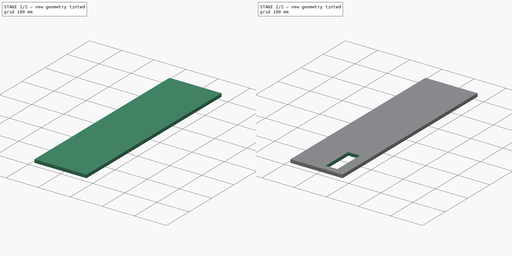
[diagram: build sequence overview — one tinted view per stage of 2, left to right]
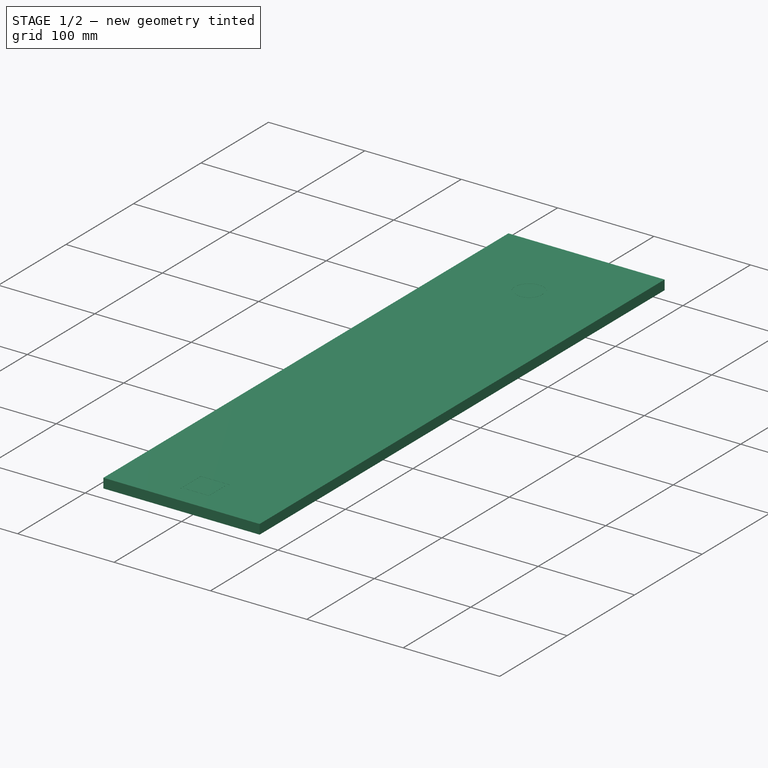
[diagram: stage 1 of 2 — iso view after this stage's code; geometry added in this stage tinted green]
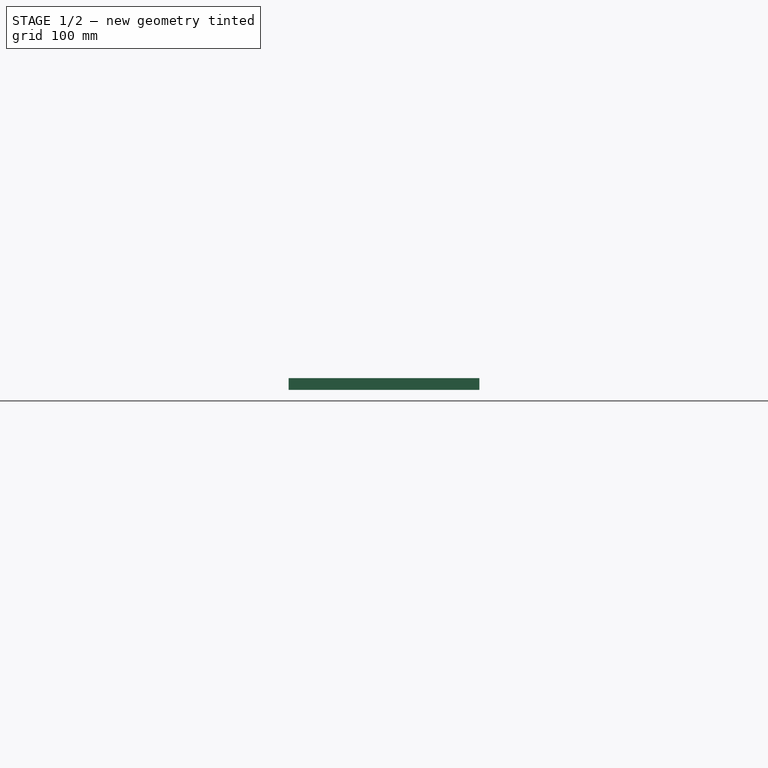
[diagram: stage 1 of 2 — front view after this stage's code; geometry added in this stage tinted green]
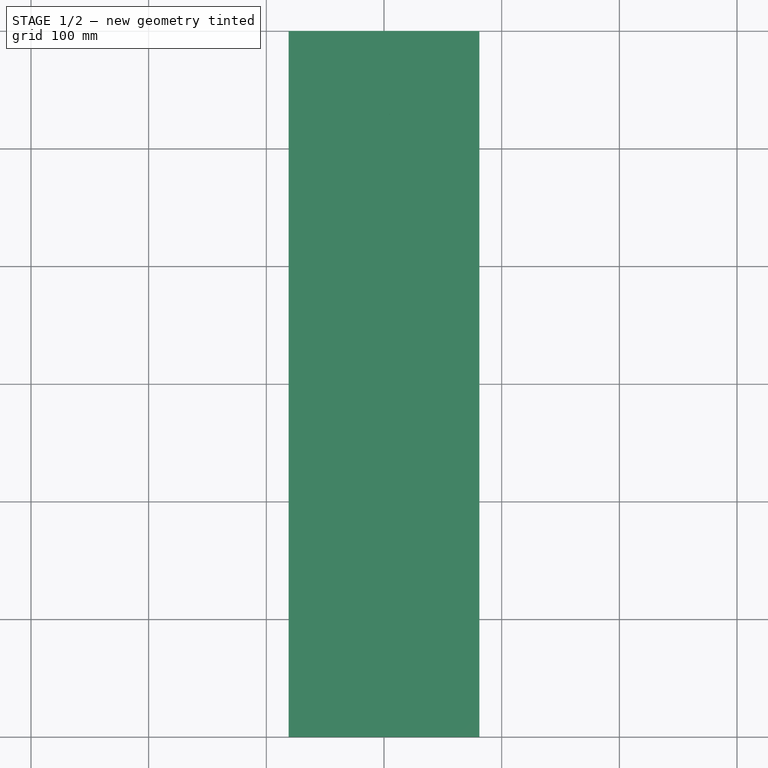
[diagram: stage 1 of 2 — top view after this stage's code; geometry added in this stage tinted green]
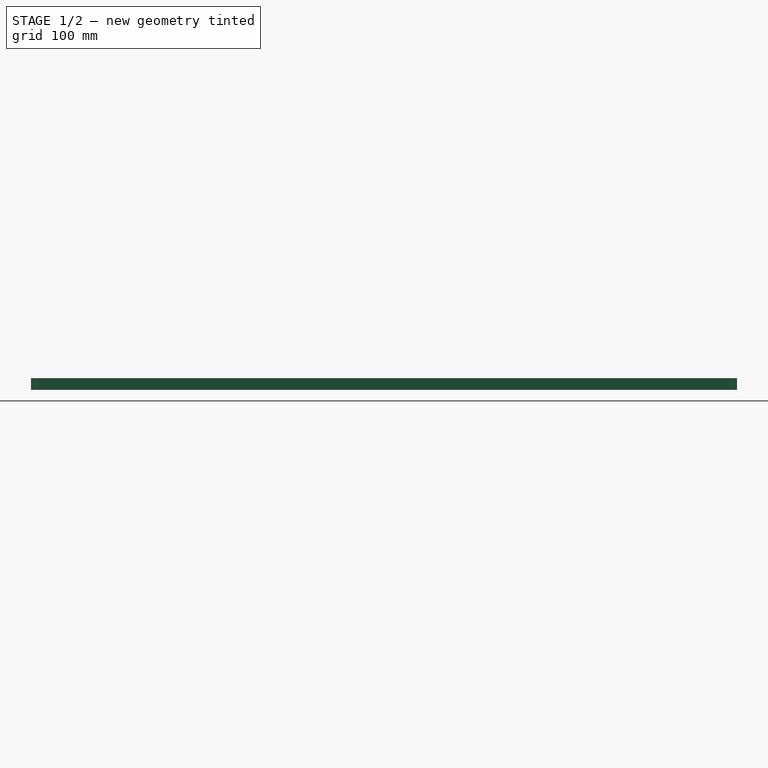
[diagram: stage 1 of 2 — right view after this stage's code; geometry added in this stage tinted green]
FCSTD DOCUMENT  (FreeCAD 0.20R29603 (Git))
Label: Heat Exchanger side structures_v3_1.8mm
License: All rights reserved
LicenseURL: http://en.wikipedia.org/wiki/All_rights_reserved
objects: Sketcher::SketchObject×8, Part::Mirroring×3, PartDesign::Pocket×2, PartDesign::Pad×1, PartDesign::Body×1
note: 18 computed .brp shape members not serialized (recipe doc carries the construction recipe); baked Part::Feature solids carry a one-line shape summary decoded from their .brp

FEATURE [Sketcher::SketchObject] Sketch
  Base_air_channel_thickness = 1.8
  Base_center_insulation_width = 30
  Base_number_of_channel = 10
  FullyConstrained = true
  MapMode = 5
  Support = -> [XY_Plane]
  expr: Constraints[8] = Base_center_insulation_width * 3 + Base_air_channel_thickness * Base_number_of_channel * 4
  sketch-geometry (4):
    g0: LineSegment StartX=-81 StartY=600 StartZ=0 EndX=81 EndY=600 EndZ=0
    g1: LineSegment StartX=81 StartY=600 StartZ=0 EndX=81 EndY=0 EndZ=0
    g2: LineSegment StartX=81 StartY=0 StartZ=0 EndX=-81 EndY=0 EndZ=0
    g3: LineSegment StartX=-81 StartY=0 StartZ=0 EndX=-81 EndY=600 EndZ=0
  constraints (12):
    c: Coincident(g0,g1)
    c: Coincident(g1,g2)
    c: Coincident(g2,g3)
    c: Coincident(g3,g0)
    c: Horizontal(g0)
    c: Horizontal(g2)
    c: Vertical(g1)
    c: Vertical(g3)
    c: DistanceX(g2,g2) = 162
    c: DistanceY(g3,g3) = 600
    c: PointOnObject(g-1,g2)
    c: DistanceX(g2,g-1) = 81
FEATURE [PartDesign::Pad] Pad
  Direction = (0,0,1)
  Length = 10
  Length2 = 10
  Profile = -> Sketch
  ReferenceAxis = -> Sketch [N_Axis]
  Type = 0
FEATURE [Sketcher::SketchObject] Sketch002
  FullyConstrained = false
  MapMode = 5
  Placement = pos=(0,0,10) rot=(0,0,1;0rad)
  Support = -> [Pad]
  expr: Constraints[31] = 15 + 20 * 1.8
  sketch-geometry (155):
    g0: LineSegment StartX=-1.8e-15 StartY=515 StartZ=0 EndX=51 EndY=528.665 EndZ=0
    g1: LineSegment StartX=51 StartY=528.665 StartZ=0 EndX=37.3346 EndY=552.335 EndZ=0
    g2: LineSegment StartX=37.3346 StartY=552.335 StartZ=0 EndX=13.6654 EndY=566 EndZ=0
    g3: LineSegment StartX=13.6654 StartY=566 StartZ=0 EndX=-13.6654 EndY=566 EndZ=0
    g4: LineSegment StartX=-13.6654 StartY=566 StartZ=0 EndX=-37.3346 EndY=552.335 EndZ=0
    g5: LineSegment StartX=-37.3346 StartY=552.335 StartZ=0 EndX=-51 EndY=528.665 EndZ=0
    g6: LineSegment StartX=-51 StartY=528.665 StartZ=0 EndX=0 EndY=515 EndZ=0
    g7: LineSegment StartX=-37.3346 StartY=552.335 StartZ=0 EndX=0 EndY=515 EndZ=0
    g8: LineSegment StartX=-1.8e-15 StartY=515 StartZ=0 EndX=-13.6654 EndY=566 EndZ=0
    g9: LineSegment StartX=13.6654 StartY=566 StartZ=0 EndX=-1.8e-15 EndY=515 EndZ=0
    g10: LineSegment StartX=-1.8e-15 StartY=515 StartZ=0 EndX=37.3346 EndY=552.335 EndZ=0
    g11: LineSegment StartX=-1.8e-15 StartY=515 StartZ=0 EndX=51 EndY=501.335 EndZ=0
    g12: LineSegment StartX=51 StartY=528.665 StartZ=0 EndX=51 EndY=501.335 EndZ=0
    g13: ArcOfCircle CenterX=36.5112 CenterY=524.783 CenterZ=0 NormalX=0 NormalY=0 NormalZ=1 AngleXU=0 Radius=14.4888 StartAngle=6.28318 EndAngle=6.80678
    g14: LineSegment StartX=51 StartY=524.301 StartZ=0 EndX=49.2 EndY=524.301 EndZ=0
    g15: LineSegment StartX=49.2 StartY=524.301 StartZ=0 EndX=51 EndY=524.783 EndZ=0
    g16: LineSegment StartX=-1.8e-15 StartY=515 StartZ=0 EndX=44.1673 EndY=540.5 EndZ=0
    g17: ArcOfCircle CenterX=34.7112 CenterY=524.301 CenterZ=0 NormalX=0 NormalY=0 NormalZ=1 AngleXU=0 Radius=14.4888 StartAngle=6.28318 EndAngle=6.80678
    g18: LineSegment StartX=51 StartY=524.783 StartZ=0 EndX=49.2 EndY=524.301 EndZ=0
    g19: ArcOfCircle CenterX=32.9112 CenterY=523.818 CenterZ=0 NormalX=0 NormalY=0 NormalZ=1 AngleXU=0 Radius=14.4888 StartAngle=6.28318 EndAngle=6.80678
    g20: LineSegment StartX=49.2 StartY=524.301 StartZ=0 EndX=47.4 EndY=523.818 EndZ=0
    g21: ArcOfCircle CenterX=31.1112 CenterY=523.336 CenterZ=0 NormalX=0 NormalY=0 NormalZ=1 AngleXU=0 Radius=14.4888 StartAngle=6.28318 EndAngle=6.80678
    g22: LineSegment StartX=47.4 StartY=523.818 StartZ=0 EndX=45.6 EndY=523.336 EndZ=0
    g23: ArcOfCircle CenterX=29.3112 CenterY=522.854 CenterZ=0 NormalX=0 NormalY=0 NormalZ=1 AngleXU=0 Radius=14.4888 StartAngle=6.28318 EndAngle=6.80678
    g24: LineSegment StartX=45.6 StartY=523.336 StartZ=0 EndX=43.8 EndY=522.854 EndZ=0
    g25: ArcOfCircle CenterX=27.5112 CenterY=522.371 CenterZ=0 NormalX=0 NormalY=0 NormalZ=1 AngleXU=0 Radius=14.4888 StartAngle=6.28318 EndAngle=6.80678
    g26: LineSegment StartX=43.8 StartY=522.854 StartZ=0 EndX=42 EndY=522.371 EndZ=0
    g27: ArcOfCircle CenterX=25.7112 CenterY=521.889 CenterZ=0 NormalX=0 NormalY=0 NormalZ=1 AngleXU=0 Radius=14.4888 StartAngle=6.28318 EndAngle=6.80678
    g28: LineSegment StartX=42 StartY=522.371 StartZ=0 EndX=40.2 EndY=521.889 EndZ=0
    g29: ArcOfCircle CenterX=23.9112 CenterY=521.407 CenterZ=0 NormalX=0 NormalY=0 NormalZ=1 AngleXU=0 Radius=14.4888 StartAngle=6.28318 EndAngle=6.80678
    g30: LineSegment StartX=40.2 StartY=521.889 StartZ=0 EndX=38.4 EndY=521.407 EndZ=0
    g31: ArcOfCircle CenterX=22.1112 CenterY=520.924 CenterZ=0 NormalX=0 NormalY=0 NormalZ=1 AngleXU=0 Radius=14.4888 StartAngle=6.28318 EndAngle=6.80678
    g32: LineSegment StartX=38.4 StartY=521.407 StartZ=0 EndX=36.6 EndY=520.924 EndZ=0
    g33: ArcOfCircle CenterX=20.3112 CenterY=520.442 CenterZ=0 NormalX=0 NormalY=0 NormalZ=1 AngleXU=0 Radius=14.4888 StartAngle=6.28318 EndAngle=6.80678
    g34: LineSegment StartX=36.6 StartY=520.924 StartZ=0 EndX=34.8 EndY=520.442 EndZ=0
    g35: ArcOfCircle CenterX=18.5112 CenterY=519.96 CenterZ=0 NormalX=0 NormalY=0 NormalZ=1 AngleXU=0 Radius=14.4888 StartAngle=6.28318 EndAngle=6.80678
    g36: LineSegment StartX=34.8 StartY=520.442 StartZ=0 EndX=33 EndY=519.96 EndZ=0
    g37: ArcOfCircle CenterX=16.7112 CenterY=519.477 CenterZ=0 NormalX=0 NormalY=0 NormalZ=1 AngleXU=0 Radius=14.4888 StartAngle=6.28318 EndAngle=6.80678
    g38: LineSegment StartX=33 StartY=519.96 StartZ=0 EndX=31.2001 EndY=519.477 EndZ=0
    g39: ArcOfCircle CenterX=14.9112 CenterY=518.995 CenterZ=0 NormalX=0 NormalY=0 NormalZ=1 AngleXU=0 Radius=14.4888 StartAngle=6.28318 EndAngle=6.80678
    g40: LineSegment StartX=31.2001 StartY=519.477 StartZ=0 EndX=29.4001 EndY=518.995 EndZ=0
    g41: ArcOfCircle CenterX=13.1112 CenterY=518.513 CenterZ=0 NormalX=0 NormalY=0 NormalZ=1 AngleXU=0 Radius=14.4888 StartAngle=6.28318 EndAngle=6.80678
    g42: LineSegment StartX=29.4001 StartY=518.995 StartZ=0 EndX=27.6001 EndY=518.513 EndZ=0
    g43: ArcOfCircle CenterX=11.3112 CenterY=518.03 CenterZ=0 NormalX=0 NormalY=0 NormalZ=1 AngleXU=0 Radius=14.4888 StartAngle=6.28318 EndAngle=6.80678
    g44: LineSegment StartX=27.6001 StartY=518.513 StartZ=0 EndX=25.8001 EndY=518.03 EndZ=0
    g45: ArcOfCircle CenterX=9.51123 CenterY=517.548 CenterZ=0 NormalX=0 NormalY=0 NormalZ=1 AngleXU=0 Radius=14.4888 StartAngle=6.28318 EndAngle=6.80678
    g46: LineSegment StartX=25.8001 StartY=518.03 StartZ=0 EndX=24.0001 EndY=517.548 EndZ=0
    g47: ArcOfCircle CenterX=7.71123 CenterY=517.066 CenterZ=0 NormalX=0 NormalY=0 NormalZ=1 AngleXU=0 Radius=14.4888 StartAngle=6.28318 EndAngle=6.80678
    g48: LineSegment StartX=24.0001 StartY=517.548 StartZ=0 EndX=22.2001 EndY=517.066 EndZ=0
    g49: ArcOfCircle CenterX=5.91124 CenterY=516.583 CenterZ=0 NormalX=0 NormalY=0 NormalZ=1 AngleXU=0 Radius=14.4888 StartAngle=6.28318 EndAngle=6.80678
    g50: LineSegment StartX=22.2001 StartY=517.066 StartZ=0 EndX=20.4001 EndY=516.583 EndZ=0
    g51: ArcOfCircle CenterX=4.11124 CenterY=516.101 CenterZ=0 NormalX=0 NormalY=0 NormalZ=1 AngleXU=0 Radius=14.4888 StartAngle=6.28318 EndAngle=6.80678
    g52: LineSegment StartX=20.4001 StartY=516.583 StartZ=0 EndX=18.6001 EndY=516.101 EndZ=0
    g53: ArcOfCircle CenterX=2.31125 CenterY=515.619 CenterZ=0 NormalX=0 NormalY=0 NormalZ=1 AngleXU=0 Radius=14.4888 StartAngle=6.28318 EndAngle=6.80678
    g54: LineSegment StartX=18.6001 StartY=516.101 StartZ=0 EndX=16.8001 EndY=515.619 EndZ=0
    g55: ArcOfCircle CenterX=1.69154 CenterY=516.692 CenterZ=0 NormalX=0 NormalY=0 NormalZ=1 AngleXU=0 Radius=14.4888 StartAngle=0.523599 EndAngle=1.0472
    g56: ArcOfCircle CenterX=3.00925 CenterY=518.01 CenterZ=0 NormalX=0 NormalY=0 NormalZ=1 AngleXU=0 Radius=14.4888 StartAngle=0.523599 EndAngle=1.0472
    g57: ArcOfCircle CenterX=4.32696 CenterY=519.328 CenterZ=0 NormalX=0 NormalY=0 NormalZ=1 AngleXU=0 Radius=14.4888 StartAngle=0.523599 EndAngle=1.0472
    g58: ArcOfCircle CenterX=5.64467 CenterY=520.645 CenterZ=0 NormalX=0 NormalY=0 NormalZ=1 AngleXU=0 Radius=14.4888 StartAngle=0.523599 EndAngle=1.0472
    g59: ArcOfCircle CenterX=6.96238 CenterY=521.963 CenterZ=0 NormalX=0 NormalY=0 NormalZ=1 AngleXU=0 Radius=14.4888 StartAngle=0.523599 EndAngle=1.0472
    g60: ArcOfCircle CenterX=8.28009 CenterY=523.281 CenterZ=0 NormalX=0 NormalY=0 NormalZ=1 AngleXU=0 Radius=14.4888 StartAngle=0.523599 EndAngle=1.0472
    g61: ArcOfCircle CenterX=9.5978 CenterY=524.598 CenterZ=0 NormalX=0 NormalY=0 NormalZ=1 AngleXU=0 Radius=14.4888 StartAngle=0.523599 EndAngle=1.0472
    g62: ArcOfCircle CenterX=10.9155 CenterY=525.916 CenterZ=0 NormalX=0 NormalY=0 NormalZ=1 AngleXU=0 Radius=14.4888 StartAngle=0.523599 EndAngle=1.0472
    g63: ArcOfCircle CenterX=12.2332 CenterY=527.234 CenterZ=0 NormalX=0 NormalY=0 NormalZ=1 AngleXU=0 Radius=14.4888 StartAngle=0.523599 EndAngle=1.0472
    g64: ArcOfCircle CenterX=13.5509 CenterY=528.551 CenterZ=0 NormalX=0 NormalY=0 NormalZ=1 AngleXU=0 Radius=14.4888 StartAngle=0.523599 EndAngle=1.0472
    g65: ArcOfCircle CenterX=14.8686 CenterY=529.869 CenterZ=0 NormalX=0 NormalY=0 NormalZ=1 AngleXU=0 Radius=14.4888 StartAngle=0.523599 EndAngle=1.0472
    g66: ArcOfCircle CenterX=16.1863 CenterY=531.187 CenterZ=0 NormalX=0 NormalY=0 NormalZ=1 AngleXU=0 Radius=14.4888 StartAngle=0.523599 EndAngle=1.0472
    g67: ArcOfCircle CenterX=17.5041 CenterY=532.504 CenterZ=0 NormalX=0 NormalY=0 NormalZ=1 AngleXU=0 Radius=14.4888 StartAngle=0.523599 EndAngle=1.0472
    g68: ArcOfCircle CenterX=18.8218 CenterY=533.822 CenterZ=0 NormalX=0 NormalY=0 NormalZ=1 AngleXU=0 Radius=14.4888 StartAngle=0.523599 EndAngle=1.0472
    g69: ArcOfCircle CenterX=20.1395 CenterY=535.14 CenterZ=0 NormalX=0 NormalY=0 NormalZ=1 AngleXU=0 Radius=14.4888 StartAngle=0.523599 EndAngle=1.0472
    g70: ArcOfCircle CenterX=21.4572 CenterY=536.457 CenterZ=0 NormalX=0 NormalY=0 NormalZ=1 AngleXU=0 Radius=14.4888 StartAngle=0.523599 EndAngle=1.0472
    g71: ArcOfCircle CenterX=22.7749 CenterY=537.775 CenterZ=0 NormalX=0 NormalY=0 NormalZ=1 AngleXU=0 Radius=14.4888 StartAngle=0.523599 EndAngle=1.0472
    g72: ArcOfCircle CenterX=24.0926 CenterY=539.093 CenterZ=0 NormalX=0 NormalY=0 NormalZ=1 AngleXU=0 Radius=14.4888 StartAngle=0.523599 EndAngle=1.0472
    g73: ArcOfCircle CenterX=25.4103 CenterY=540.41 CenterZ=0 NormalX=0 NormalY=0 NormalZ=1 AngleXU=0 Radius=14.4888 StartAngle=0.523599 EndAngle=1.0472
    g74: ArcOfCircle CenterX=26.728 CenterY=541.728 CenterZ=0 NormalX=0 NormalY=0 NormalZ=1 AngleXU=0 Radius=14.4888 StartAngle=0.523599 EndAngle=1.0472
    g75: ArcOfCircle CenterX=-0.618825 CenterY=517.311 CenterZ=0 NormalX=0 NormalY=0 NormalZ=1 AngleXU=0 Radius=14.4888 StartAngle=1.57079 EndAngle=2.0944
    g76: ArcOfCircle CenterX=-1.10116 CenterY=519.111 CenterZ=0 NormalX=0 NormalY=0 NormalZ=1 AngleXU=0 Radius=14.4888 StartAngle=1.57079 EndAngle=2.0944
    g77: ArcOfCircle CenterX=-1.58349 CenterY=520.911 CenterZ=0 NormalX=0 NormalY=0 NormalZ=1 AngleXU=0 Radius=14.4888 StartAngle=1.57079 EndAngle=2.0944
    g78: ArcOfCircle CenterX=-2.06582 CenterY=522.711 CenterZ=0 NormalX=0 NormalY=0 NormalZ=1 AngleXU=0 Radius=14.4888 StartAngle=1.57079 EndAngle=2.0944
    g79: ArcOfCircle CenterX=-2.54815 CenterY=524.511 CenterZ=0 NormalX=0 NormalY=0 NormalZ=1 AngleXU=0 Radius=14.4888 StartAngle=1.57079 EndAngle=2.0944
    g80: ArcOfCircle CenterX=-3.03049 CenterY=526.311 CenterZ=0 NormalX=0 NormalY=0 NormalZ=1 AngleXU=0 Radius=14.4888 StartAngle=1.57079 EndAngle=2.0944
    g81: ArcOfCircle CenterX=-3.51282 CenterY=528.111 CenterZ=0 NormalX=0 NormalY=0 NormalZ=1 AngleXU=0 Radius=14.4888 StartAngle=1.57079 EndAngle=2.0944
    g82: ArcOfCircle CenterX=-3.99515 CenterY=529.911 CenterZ=0 NormalX=0 NormalY=0 NormalZ=1 AngleXU=0 Radius=14.4888 StartAngle=1.57079 EndAngle=2.0944
    g83: ArcOfCircle CenterX=-4.47748 CenterY=531.711 CenterZ=0 NormalX=0 NormalY=0 NormalZ=1 AngleXU=0 Radius=14.4888 StartAngle=1.57079 EndAngle=2.0944
    g84: ArcOfCircle CenterX=-4.95981 CenterY=533.511 CenterZ=0 NormalX=0 NormalY=0 NormalZ=1 AngleXU=0 Radius=14.4888 StartAngle=1.57079 EndAngle=2.0944
    g85: ArcOfCircle CenterX=-5.44215 CenterY=535.311 CenterZ=0 NormalX=0 NormalY=0 NormalZ=1 AngleXU=0 Radius=14.4888 StartAngle=1.57079 EndAngle=2.0944
    g86: ArcOfCircle CenterX=-5.92448 CenterY=537.111 CenterZ=0 NormalX=0 NormalY=0 NormalZ=1 AngleXU=0 Radius=14.4888 StartAngle=1.57079 EndAngle=2.0944
    g87: ArcOfCircle CenterX=-6.40681 CenterY=538.911 CenterZ=0 NormalX=0 NormalY=0 NormalZ=1 AngleXU=0 Radius=14.4888 StartAngle=1.57079 EndAngle=2.0944
    g88: ArcOfCircle CenterX=-6.88914 CenterY=540.711 CenterZ=0 NormalX=0 NormalY=0 NormalZ=1 AngleXU=0 Radius=14.4888 StartAngle=1.57079 EndAngle=2.0944
    g89: ArcOfCircle CenterX=-7.37147 CenterY=542.511 CenterZ=0 NormalX=0 NormalY=0 NormalZ=1 AngleXU=0 Radius=14.4888 StartAngle=1.57079 EndAngle=2.0944
    g90: ArcOfCircle CenterX=-7.85381 CenterY=544.311 CenterZ=0 NormalX=0 NormalY=0 NormalZ=1 AngleXU=0 Radius=14.4888 StartAngle=1.57079 EndAngle=2.0944
    g91: ArcOfCircle CenterX=-8.33614 CenterY=546.111 CenterZ=0 NormalX=0 NormalY=0 NormalZ=1 AngleXU=0 Radius=14.4888 StartAngle=1.57079 EndAngle=2.0944
    g92: ArcOfCircle CenterX=-9.78313 CenterY=551.511 CenterZ=0 NormalX=0 NormalY=0 NormalZ=1 AngleXU=0 Radius=14.4888 StartAngle=1.57079 EndAngle=2.0944
    g93: ArcOfCircle CenterX=-9.3008 CenterY=549.711 CenterZ=0 NormalX=0 NormalY=0 NormalZ=1 AngleXU=0 Radius=14.4888 StartAngle=1.57079 EndAngle=2.0944
    g94: ArcOfCircle CenterX=-8.81847 CenterY=547.911 CenterZ=0 NormalX=0 NormalY=0 NormalZ=1 AngleXU=0 Radius=14.4888 StartAngle=1.57079 EndAngle=2.0944
    g95: ArcOfCircle CenterX=-26.728 CenterY=541.728 CenterZ=0 NormalX=0 NormalY=0 NormalZ=1 AngleXU=0 Radius=14.4888 StartAngle=2.0944 EndAngle=2.618
    g96: ArcOfCircle CenterX=-25.4103 CenterY=540.41 CenterZ=0 NormalX=0 NormalY=0 NormalZ=1 AngleXU=0 Radius=14.4888 StartAngle=2.0944 EndAngle=2.618
    g97: ArcOfCircle CenterX=-24.0927 CenterY=539.093 CenterZ=0 NormalX=0 NormalY=0 NormalZ=1 AngleXU=0 Radius=14.4888 StartAngle=2.0944 EndAngle=2.618
    g98: ArcOfCircle CenterX=-22.775 CenterY=537.775 CenterZ=0 NormalX=0 NormalY=0 NormalZ=1 AngleXU=0 Radius=14.4888 StartAngle=2.0944 EndAngle=2.618
    g99: ArcOfCircle CenterX=-21.4573 CenterY=536.457 CenterZ=0 NormalX=0 NormalY=0 NormalZ=1 AngleXU=0 Radius=14.4888 StartAngle=2.0944 EndAngle=2.618
    g100: ArcOfCircle CenterX=-20.1396 CenterY=535.139 CenterZ=0 NormalX=0 NormalY=0 NormalZ=1 AngleXU=0 Radius=14.4888 StartAngle=2.0944 EndAngle=2.618
    g101: ArcOfCircle CenterX=-18.822 CenterY=533.822 CenterZ=0 NormalX=0 NormalY=0 NormalZ=1 AngleXU=0 Radius=14.4888 StartAngle=2.0944 EndAngle=2.618
    g102: ArcOfCircle CenterX=-17.5043 CenterY=532.504 CenterZ=0 NormalX=0 NormalY=0 NormalZ=1 AngleXU=0 Radius=14.4888 StartAngle=2.0944 EndAngle=2.618
    g103: ArcOfCircle CenterX=-16.1866 CenterY=531.186 CenterZ=0 NormalX=0 NormalY=0 NormalZ=1 AngleXU=0 Radius=14.4888 StartAngle=2.0944 EndAngle=2.618
    g104: ArcOfCircle CenterX=-14.8689 CenterY=529.869 CenterZ=0 NormalX=0 NormalY=0 NormalZ=1 AngleXU=0 Radius=14.4888 StartAngle=2.0944 EndAngle=2.618
    g105: ArcOfCircle CenterX=-13.5513 CenterY=528.551 CenterZ=0 NormalX=0 NormalY=0 NormalZ=1 AngleXU=0 Radius=14.4888 StartAngle=2.0944 EndAngle=2.618
    g106: ArcOfCircle CenterX=-12.2336 CenterY=527.233 CenterZ=0 NormalX=0 NormalY=0 NormalZ=1 AngleXU=0 Radius=14.4888 StartAngle=2.0944 EndAngle=2.618
    g107: ArcOfCircle CenterX=-10.9159 CenterY=525.916 CenterZ=0 NormalX=0 NormalY=0 NormalZ=1 AngleXU=0 Radius=14.4888 StartAngle=2.0944 EndAngle=2.618
    g108: ArcOfCircle CenterX=-9.59824 CenterY=524.598 CenterZ=0 NormalX=0 NormalY=0 NormalZ=1 AngleXU=0 Radius=14.4888 StartAngle=2.0944 EndAngle=2.618
    g109: ArcOfCircle CenterX=-8.28056 CenterY=523.28 CenterZ=0 NormalX=0 NormalY=0 NormalZ=1 AngleXU=0 Radius=14.4888 StartAngle=2.0944 EndAngle=2.618
    g110: ArcOfCircle CenterX=-6.96289 CenterY=521.962 CenterZ=0 NormalX=0 NormalY=0 NormalZ=1 AngleXU=0 Radius=14.4888 StartAngle=2.0944 EndAngle=2.618
    g111: ArcOfCircle CenterX=-5.64521 CenterY=520.645 CenterZ=0 NormalX=0 NormalY=0 NormalZ=1 AngleXU=0 Radius=14.4888 StartAngle=2.0944 EndAngle=2.618
    g112: ArcOfCircle CenterX=-4.32754 CenterY=519.327 CenterZ=0 NormalX=0 NormalY=0 NormalZ=1 AngleXU=0 Radius=14.4888 StartAngle=2.0944 EndAngle=2.618
    g113: ArcOfCircle CenterX=-3.00986 CenterY=518.009 CenterZ=0 NormalX=0 NormalY=0 NormalZ=1 AngleXU=0 Radius=14.4888 StartAngle=2.0944 EndAngle=2.618
    g114: ArcOfCircle CenterX=-1.69219 CenterY=516.692 CenterZ=0 NormalX=0 NormalY=0 NormalZ=1 AngleXU=0 Radius=14.4888 StartAngle=2.0944 EndAngle=2.618
    g115: ArcOfCircle CenterX=0.618825 CenterY=517.311 CenterZ=0 NormalX=0 NormalY=0 NormalZ=1 AngleXU=0 Radius=14.4888 StartAngle=1.0472 EndAngle=1.5708
    g116: ArcOfCircle CenterX=1.10116 CenterY=519.111 CenterZ=0 NormalX=0 NormalY=0 NormalZ=1 AngleXU=0 Radius=14.4888 StartAngle=1.0472 EndAngle=1.5708
    g117: ArcOfCircle CenterX=1.58349 CenterY=520.911 CenterZ=0 NormalX=0 NormalY=0 NormalZ=1 AngleXU=0 Radius=14.4888 StartAngle=1.0472 EndAngle=1.5708
    g118: ArcOfCircle CenterX=2.06582 CenterY=522.711 CenterZ=0 NormalX=0 NormalY=0 NormalZ=1 AngleXU=0 Radius=14.4888 StartAngle=1.0472 EndAngle=1.5708
    g119: ArcOfCircle CenterX=2.54815 CenterY=524.511 CenterZ=0 NormalX=0 NormalY=0 NormalZ=1 AngleXU=0 Radius=14.4888 StartAngle=1.0472 EndAngle=1.5708
    g120: ArcOfCircle CenterX=3.03049 CenterY=526.311 CenterZ=0 NormalX=0 NormalY=0 NormalZ=1 AngleXU=0 Radius=14.4888 StartAngle=1.0472 EndAngle=1.5708
    g121: ArcOfCircle CenterX=3.51282 CenterY=528.111 CenterZ=0 NormalX=0 NormalY=0 NormalZ=1 AngleXU=0 Radius=14.4888 StartAngle=1.0472 EndAngle=1.5708
    g122: ArcOfCircle CenterX=3.99515 CenterY=529.911 CenterZ=0 NormalX=0 NormalY=0 NormalZ=1 AngleXU=0 Radius=14.4888 StartAngle=1.0472 EndAngle=1.5708
    g123: ArcOfCircle CenterX=4.47748 CenterY=531.711 CenterZ=0 NormalX=0 NormalY=0 NormalZ=1 AngleXU=0 Radius=14.4888 StartAngle=1.0472 EndAngle=1.5708
    g124: ArcOfCircle CenterX=4.95981 CenterY=533.511 CenterZ=0 NormalX=0 NormalY=0 NormalZ=1 AngleXU=0 Radius=14.4888 StartAngle=1.0472 EndAngle=1.5708
    g125: ArcOfCircle CenterX=5.44215 CenterY=535.311 CenterZ=0 NormalX=0 NormalY=0 NormalZ=1 AngleXU=0 Radius=14.4888 StartAngle=1.0472 EndAngle=1.5708
    g126: ArcOfCircle CenterX=5.92448 CenterY=537.111 CenterZ=0 NormalX=0 NormalY=0 NormalZ=1 AngleXU=0 Radius=14.4888 StartAngle=1.0472 EndAngle=1.5708
    g127: ArcOfCircle CenterX=6.40681 CenterY=538.911 CenterZ=0 NormalX=0 NormalY=0 NormalZ=1 AngleXU=0 Radius=14.4888 StartAngle=1.0472 EndAngle=1.5708
    g128: ArcOfCircle CenterX=6.88914 CenterY=540.711 CenterZ=0 NormalX=0 NormalY=0 NormalZ=1 AngleXU=0 Radius=14.4888 StartAngle=1.0472 EndAngle=1.5708
    g129: ArcOfCircle CenterX=7.37147 CenterY=542.511 CenterZ=0 NormalX=0 NormalY=0 NormalZ=1 AngleXU=0 Radius=14.4888 StartAngle=1.0472 EndAngle=1.5708
    g130: ArcOfCircle CenterX=7.85381 CenterY=544.311 CenterZ=0 NormalX=0 NormalY=0 NormalZ=1 AngleXU=0 Radius=14.4888 StartAngle=1.0472 EndAngle=1.5708
    g131: ArcOfCircle CenterX=8.33614 CenterY=546.111 CenterZ=0 NormalX=0 NormalY=0 NormalZ=1 AngleXU=0 Radius=14.4888 StartAngle=1.0472 EndAngle=1.5708
    g132: ArcOfCircle CenterX=8.81847 CenterY=547.911 CenterZ=0 NormalX=0 NormalY=0 NormalZ=1 AngleXU=0 Radius=14.4888 StartAngle=1.0472 EndAngle=1.5708
    g133: ArcOfCircle CenterX=9.3008 CenterY=549.711 CenterZ=0 NormalX=0 NormalY=0 NormalZ=1 AngleXU=0 Radius=14.4888 StartAngle=1.0472 EndAngle=1.5708
    g134: ArcOfCircle CenterX=9.78313 CenterY=551.511 CenterZ=0 NormalX=0 NormalY=0 NormalZ=1 AngleXU=0 Radius=14.4888 StartAngle=1.0472 EndAngle=1.5708
    g135: ArcOfCircle CenterX=-2.31125 CenterY=515.619 CenterZ=0 NormalX=0 NormalY=0 NormalZ=1 AngleXU=0 Radius=14.4888 StartAngle=2.61799 EndAngle=3.14159
    g136: ArcOfCircle CenterX=-4.11124 CenterY=516.101 CenterZ=0 NormalX=0 NormalY=0 NormalZ=1 AngleXU=0 Radius=14.4888 StartAngle=2.61799 EndAngle=3.14159
    g137: ArcOfCircle CenterX=-5.91124 CenterY=516.583 CenterZ=0 NormalX=0 NormalY=0 NormalZ=1 AngleXU=0 Radius=14.4888 StartAngle=2.61799 EndAngle=3.14159
    g138: ArcOfCircle CenterX=-7.71123 CenterY=517.066 CenterZ=0 NormalX=0 NormalY=0 NormalZ=1 AngleXU=0 Radius=14.4888 StartAngle=2.61799 EndAngle=3.14159
    g139: ArcOfCircle CenterX=-9.51123 CenterY=517.548 CenterZ=0 NormalX=0 NormalY=0 NormalZ=1 AngleXU=0 Radius=14.4888 StartAngle=2.61799 EndAngle=3.14159
    g140: ArcOfCircle CenterX=-11.3112 CenterY=518.03 CenterZ=0 NormalX=0 NormalY=0 NormalZ=1 AngleXU=0 Radius=14.4888 StartAngle=2.61799 EndAngle=3.14159
    g141: ArcOfCircle CenterX=-13.1112 CenterY=518.513 CenterZ=0 NormalX=0 NormalY=0 NormalZ=1 AngleXU=0 Radius=14.4888 StartAngle=2.61799 EndAngle=3.14159
    g142: ArcOfCircle CenterX=-14.9112 CenterY=518.995 CenterZ=0 NormalX=0 NormalY=0 NormalZ=1 AngleXU=0 Radius=14.4888 StartAngle=2.61799 EndAngle=3.14159
    g143: ArcOfCircle CenterX=-16.7112 CenterY=519.477 CenterZ=0 NormalX=0 NormalY=0 NormalZ=1 AngleXU=0 Radius=14.4888 StartAngle=2.61799 EndAngle=3.14159
    g144: ArcOfCircle CenterX=-18.5112 CenterY=519.96 CenterZ=0 NormalX=0 NormalY=0 NormalZ=1 AngleXU=0 Radius=14.4888 StartAngle=2.61799 EndAngle=3.14159
    g145: ArcOfCircle CenterX=-20.3112 CenterY=520.442 CenterZ=0 NormalX=0 NormalY=0 NormalZ=1 AngleXU=0 Radius=14.4888 StartAngle=2.61799 EndAngle=3.14159
    g146: ArcOfCircle CenterX=-22.1112 CenterY=520.924 CenterZ=0 NormalX=0 NormalY=0 NormalZ=1 AngleXU=0 Radius=14.4888 StartAngle=2.61799 EndAngle=3.14159
    g147: ArcOfCircle CenterX=-23.9112 CenterY=521.407 CenterZ=0 NormalX=0 NormalY=0 NormalZ=1 AngleXU=0 Radius=14.4888 StartAngle=2.61799 EndAngle=3.14159
    g148: ArcOfCircle CenterX=-25.7112 CenterY=521.889 CenterZ=0 NormalX=0 NormalY=0 NormalZ=1 AngleXU=0 Radius=14.4888 StartAngle=2.61799 EndAngle=3.14159
    g149: ArcOfCircle CenterX=-27.5112 CenterY=522.371 CenterZ=0 NormalX=0 NormalY=0 NormalZ=1 AngleXU=0 Radius=14.4888 StartAngle=2.61799 EndAngle=3.14159
    g150: ArcOfCircle CenterX=-29.3112 CenterY=522.854 CenterZ=0 NormalX=0 NormalY=0 NormalZ=1 AngleXU=0 Radius=14.4888 StartAngle=2.61799 EndAngle=3.14159
    g151: ArcOfCircle CenterX=-31.1112 CenterY=523.336 CenterZ=0 NormalX=0 NormalY=0 NormalZ=1 AngleXU=0 Radius=14.4888 StartAngle=2.61799 EndAngle=3.14159
    g152: ArcOfCircle CenterX=-32.9112 CenterY=523.818 CenterZ=0 NormalX=0 NormalY=0 NormalZ=1 AngleXU=0 Radius=14.4888 StartAngle=2.61799 EndAngle=3.14159
    g153: ArcOfCircle CenterX=-34.7112 CenterY=524.301 CenterZ=0 NormalX=0 NormalY=0 NormalZ=1 AngleXU=0 Radius=14.4888 StartAngle=2.61799 EndAngle=3.14159
    g154: ArcOfCircle CenterX=-36.5112 CenterY=524.783 CenterZ=0 NormalX=0 NormalY=0 NormalZ=1 AngleXU=0 Radius=14.4888 StartAngle=2.61799 EndAngle=3.14159
  constraints (239):
    c: Coincident(g0,g1)
    c: Coincident(g1,g2)
    c: Coincident(g2,g3)
    c: Horizontal(g3)
    c: Coincident(g3,g4)
    c: Coincident(g4,g5)
    c: Coincident(g5,g6)
    c: Coincident(g6,g0)
    c: Coincident(g4,g7)
    c: Coincident(g7,g0)
    c: Coincident(g7,g8)
    c: Coincident(g8,g3)
    c: Coincident(g2,g9)
    c: Coincident(g9,g0)
    c: Coincident(g9,g10)
    c: Coincident(g10,g1)
    c: Equal(g6,g7)
    c: Equal(g7,g8)
    c: Equal(g8,g9)
    c: Equal(g9,g10)
    c: Equal(g10,g0)
    c: Equal(g5,g4)
    c: Equal(g4,g3)
    c: Equal(g3,g2)
    c: Equal(g2,g1)
    c: Coincident(g11,g0)
    c: Coincident(g12,g0)
    c: Coincident(g12,g11)
    c: Vertical(g12)
    c: Equal(g0,g11)
    c: Equal(g1,g12)
    c: DistanceX(g0,g11) = 51
    c: PointOnObject(g13,g0)
    c: PointOnObject(g13,g12)
    c: Tangent(g13,g1) = -1.5708
    c: Distance(g13,g13) = 7.5
    c: PointOnObject(g14,g12)
    c: Horizontal(g14)
    c: Coincident(g15,g13)
    c: Parallel(g15,g0)
    c: DistanceX(g14,g14) = 1.8
    c: Coincident(g16,g0)
    c: PointOnObject(g16,g1)
    c: Perpendicular(g1,g16)
    c: Coincident(g15,g14)
    c: Equal(g13,g17) = 7.5
    c: Coincident(g13,g18)
    c: Coincident(g17,g18)
    c: Angle(g18) = -2.87978
    c: Equal(g13,g19) = 7.5
    c: Coincident(g17,g20)
    c: Coincident(g19,g20)
    c: Equal(g18,g20)
    c: Parallel(g20,g18)
    c: Equal(g13,g21) = 7.5
    c: Coincident(g19,g22)
    c: Coincident(g21,g22)
    c: Equal(g18,g22)
    c: Parallel(g22,g18)
    c: Equal(g13,g23) = 7.5
    c: Coincident(g21,g24)
    c: Coincident(g23,g24)
    c: Equal(g18,g24)
    c: Parallel(g24,g18)
    c: Equal(g13,g25) = 7.5
    c: Coincident(g23,g26)
    c: Coincident(g25,g26)
    c: Equal(g18,g26)
    c: Parallel(g26,g18)
    c: Equal(g13,g27) = 7.5
    c: Coincident(g25,g28)
    c: Coincident(g27,g28)
    c: Equal(g18,g28)
    c: Parallel(g28,g18)
    c: Equal(g13,g29) = 7.5
    c: Coincident(g27,g30)
    c: Coincident(g29,g30)
    c: Equal(g18,g30)
    c: Parallel(g30,g18)
    c: Equal(g13,g31) = 7.5
    c: Coincident(g29,g32)
    c: Coincident(g31,g32)
    c: Equal(g18,g32)
    c: Parallel(g32,g18)
    c: Equal(g13,g33) = 7.5
    c: Coincident(g31,g34)
    c: Coincident(g33,g34)
    c: Equal(g18,g34)
    c: Parallel(g34,g18)
    c: Equal(g13,g35) = 7.5
    c: Coincident(g33,g36)
    c: Coincident(g35,g36)
    c: Equal(g18,g36)
    c: Parallel(g36,g18)
    c: Equal(g13,g37) = 7.5
    c: Coincident(g35,g38)
    c: Coincident(g37,g38)
    c: Equal(g18,g38)
    c: Parallel(g38,g18)
    c: Equal(g13,g39) = 7.5
    c: Coincident(g37,g40)
    c: Coincident(g39,g40)
    c: Equal(g18,g40)
    c: Parallel(g40,g18)
    c: Equal(g13,g41) = 7.5
    c: Coincident(g39,g42)
    c: Coincident(g41,g42)
    c: Equal(g18,g42)
    c: Parallel(g42,g18)
    c: Equal(g13,g43) = 7.5
    c: Coincident(g41,g44)
    c: Coincident(g43,g44)
    c: Equal(g18,g44)
    c: Parallel(g44,g18)
    c: Equal(g13,g45) = 7.5
    c: Coincident(g43,g46)
    c: Coincident(g45,g46)
    c: Equal(g18,g46)
    c: Parallel(g46,g18)
    c: Equal(g13,g47) = 7.5
    c: Coincident(g45,g48)
    c: Coincident(g47,g48)
    c: Equal(g18,g48)
    c: Parallel(g48,g18)
    c: Equal(g13,g49) = 7.5
    c: Coincident(g47,g50)
    c: Coincident(g49,g50)
    c: Equal(g18,g50)
    c: Parallel(g50,g18)
    c: Equal(g13,g51) = 7.5
    c: Coincident(g49,g52)
    c: Coincident(g51,g52)
    c: Equal(g18,g52)
    c: Parallel(g52,g18)
    c: Equal(g13,g53) = 7.5
    c: Coincident(g51,g54)
    c: Coincident(g53,g54)
    c: Equal(g18,g54)
    c: Parallel(g54,g18)
    c: Distance(g74,g74) = 7.5
    c: Equal(g74,g73) = 7.5
    c: Equal(g74,g72) = 7.5
    c: Equal(g74,g71) = 7.5
    c: Equal(g74,g70) = 7.5
    c: Equal(g74,g69) = 7.5
    c: Equal(g74,g68) = 7.5
    c: Equal(g74,g67) = 7.5
    c: Equal(g74,g66) = 7.5
    c: Equal(g74,g65) = 7.5
    c: Equal(g74,g64) = 7.5
    c: Equal(g74,g63) = 7.5
    c: Equal(g74,g62) = 7.5
    c: Equal(g74,g61) = 7.5
    c: Equal(g74,g60) = 7.5
    c: Equal(g74,g59) = 7.5
    c: Equal(g74,g58) = 7.5
    c: Equal(g74,g57) = 7.5
    c: Equal(g74,g56) = 7.5
    c: Equal(g74,g55) = 7.5
    c: Distance(g95,g95) = 7.5
    c: Equal(g95,g96) = 7.5
    c: Equal(g95,g97) = 7.5
    c: Equal(g95,g98) = 7.5
    c: Equal(g95,g99) = 7.5
    c: Equal(g95,g100) = 7.5
    c: Equal(g95,g101) = 7.5
    c: Equal(g95,g102) = 7.5
    c: Equal(g95,g103) = 7.5
    c: Equal(g95,g104) = 7.5
    c: Equal(g95,g105) = 7.5
    c: Equal(g95,g106) = 7.5
    c: Equal(g95,g107) = 7.5
    c: Equal(g95,g108) = 7.5
    c: Equal(g95,g109) = 7.5
    c: Equal(g95,g110) = 7.5
    c: Equal(g95,g111) = 7.5
    c: Equal(g95,g112) = 7.5
    c: Equal(g95,g113) = 7.5
    c: Equal(g95,g114) = 7.5
    c: Distance(g92,g92) = 7.5
    c: Equal(g92,g93) = 7.5
    c: Equal(g92,g94) = 7.5
    c: Equal(g92,g91) = 7.5
    c: Equal(g92,g90) = 7.5
    c: Equal(g92,g89) = 7.5
    c: Equal(g92,g88) = 7.5
    c: Equal(g92,g87) = 7.5
    c: Equal(g92,g86) = 7.5
    c: Equal(g92,g85) = 7.5
    c: Equal(g92,g84) = 7.5
    c: Equal(g92,g83) = 7.5
    c: Equal(g92,g82) = 7.5
    c: Equal(g92,g81) = 7.5
    c: Equal(g92,g80) = 7.5
    c: Equal(g92,g79) = 7.5
    c: Equal(g92,g78) = 7.5
    c: Equal(g92,g77) = 7.5
    c: Equal(g92,g76) = 7.5
    c: Equal(g92,g75) = 7.5
    c: Distance(g134,g134) = 7.5
    c: Equal(g134,g133) = 7.5
    c: Equal(g134,g132) = 7.5
    c: Equal(g134,g131) = 7.5
    c: Equal(g134,g130) = 7.5
    c: Equal(g134,g129) = 7.5
    c: Equal(g134,g128) = 7.5
    c: Equal(g134,g127) = 7.5
    c: Equal(g134,g126) = 7.5
    c: Equal(g134,g125) = 7.5
    c: Equal(g134,g124) = 7.5
    c: Equal(g134,g123) = 7.5
    c: Equal(g134,g122) = 7.5
    c: Equal(g134,g121) = 7.5
    c: Equal(g134,g120) = 7.5
    c: Equal(g134,g119) = 7.5
    c: Equal(g134,g118) = 7.5
    c: Equal(g134,g117) = 7.5
    c: Equal(g134,g116) = 7.5
    c: Equal(g134,g115) = 7.5
    c: Distance(g154,g154) = 7.5
    c: Equal(g154,g153) = 7.5
    c: Equal(g154,g152) = 7.5
    c: Equal(g154,g151) = 7.5
    c: Equal(g154,g150) = 7.5
    c: Equal(g154,g149) = 7.5
    c: Equal(g154,g148) = 7.5
    c: Equal(g154,g147) = 7.5
    c: Equal(g154,g146) = 7.5
    c: Equal(g154,g145) = 7.5
    c: Equal(g154,g144) = 7.5
    c: Equal(g154,g143) = 7.5
    c: Equal(g154,g142) = 7.5
    c: Equal(g154,g141) = 7.5
    c: Equal(g154,g140) = 7.5
    c: Equal(g154,g139) = 7.5
    c: Equal(g154,g138) = 7.5
    c: Equal(g154,g137) = 7.5
    c: Equal(g154,g136) = 7.5
    c: Equal(g154,g135) = 7.5
FEATURE [Sketcher::SketchObject] Sketch003
  FullyConstrained = false
  MapMode = 5
  Placement = pos=(0,0,10) rot=(0,0,1;0rad)
  Support = -> [Pad]
  sketch-geometry (131):
    g0: LineSegment StartX=15 StartY=130.027 StartZ=0 EndX=15 EndY=137.527 EndZ=0
    g1: LineSegment StartX=18.6 StartY=130.027 StartZ=0 EndX=18.6 EndY=137.527 EndZ=0
    g2: LineSegment StartX=15 StartY=130.027 StartZ=0 EndX=18.6 EndY=130.027 EndZ=0
    g3: LineSegment StartX=22.2 StartY=130.027 StartZ=0 EndX=22.2 EndY=137.527 EndZ=0
    g4: LineSegment StartX=18.6 StartY=130.027 StartZ=0 EndX=22.2 EndY=130.027 EndZ=0
    g5: LineSegment StartX=25.8 StartY=130.027 StartZ=0 EndX=25.8 EndY=137.527 EndZ=0
    g6: LineSegment StartX=22.2 StartY=130.027 StartZ=0 EndX=25.8 EndY=130.027 EndZ=0
    g7: LineSegment StartX=29.4 StartY=130.027 StartZ=0 EndX=29.4 EndY=137.527 EndZ=0
    g8: LineSegment StartX=25.8 StartY=130.027 StartZ=0 EndX=29.4 EndY=130.027 EndZ=0
    g9: LineSegment StartX=33 StartY=130.027 StartZ=0 EndX=33 EndY=137.527 EndZ=0
    g10: LineSegment StartX=29.4 StartY=130.027 StartZ=0 EndX=33 EndY=130.027 EndZ=0
    g11: LineSegment StartX=36.6 StartY=130.027 StartZ=0 EndX=36.6 EndY=137.527 EndZ=0
    g12: LineSegment StartX=33 StartY=130.027 StartZ=0 EndX=36.6 EndY=130.027 EndZ=0
    g13: LineSegment StartX=40.2 StartY=130.027 StartZ=0 EndX=40.2 EndY=137.527 EndZ=0
    g14: LineSegment StartX=36.6 StartY=130.027 StartZ=0 EndX=40.2 EndY=130.027 EndZ=0
    g15: LineSegment StartX=43.8 StartY=130.027 StartZ=0 EndX=43.8 EndY=137.527 EndZ=0
    g16: LineSegment StartX=40.2 StartY=130.027 StartZ=0 EndX=43.8 EndY=130.027 EndZ=0
    g17: LineSegment StartX=47.4 StartY=130.027 StartZ=0 EndX=47.4 EndY=137.527 EndZ=0
    g18: LineSegment StartX=43.8 StartY=130.027 StartZ=0 EndX=47.4 EndY=130.027 EndZ=0
    g19: LineSegment StartX=51 StartY=130.027 StartZ=0 EndX=51 EndY=137.527 EndZ=0
    g20: LineSegment StartX=47.4 StartY=130.027 StartZ=0 EndX=51 EndY=130.027 EndZ=0
    g21: LineSegment StartX=15 StartY=200.027 StartZ=0 EndX=15 EndY=207.527 EndZ=0
    g22: LineSegment StartX=18.6 StartY=200.027 StartZ=0 EndX=18.6 EndY=207.527 EndZ=0
    g23: LineSegment StartX=15 StartY=200.027 StartZ=0 EndX=18.6 EndY=200.027 EndZ=0
    g24: LineSegment StartX=22.2 StartY=200.027 StartZ=0 EndX=22.2 EndY=207.527 EndZ=0
    g25: LineSegment StartX=18.6 StartY=200.027 StartZ=0 EndX=22.2 EndY=200.027 EndZ=0
    g26: LineSegment StartX=25.8 StartY=200.027 StartZ=0 EndX=25.8 EndY=207.527 EndZ=0
    g27: LineSegment StartX=22.2 StartY=200.027 StartZ=0 EndX=25.8 EndY=200.027 EndZ=0
    g28: LineSegment StartX=29.4 StartY=200.027 StartZ=0 EndX=29.4 EndY=207.527 EndZ=0
    g29: LineSegment StartX=25.8 StartY=200.027 StartZ=0 EndX=29.4 EndY=200.027 EndZ=0
    g30: LineSegment StartX=33 StartY=200.027 StartZ=0 EndX=33 EndY=207.527 EndZ=0
    g31: LineSegment StartX=29.4 StartY=200.027 StartZ=0 EndX=33 EndY=200.027 EndZ=0
    g32: LineSegment StartX=36.6 StartY=200.027 StartZ=0 EndX=36.6 EndY=207.527 EndZ=0
    g33: LineSegment StartX=33 StartY=200.027 StartZ=0 EndX=36.6 EndY=200.027 EndZ=0
    g34: LineSegment StartX=40.2 StartY=200.027 StartZ=0 EndX=40.2 EndY=207.527 EndZ=0
    g35: LineSegment StartX=36.6 StartY=200.027 StartZ=0 EndX=40.2 EndY=200.027 EndZ=0
    g36: LineSegment StartX=43.8 StartY=200.027 StartZ=0 EndX=43.8 EndY=207.527 EndZ=0
    g37: LineSegment StartX=40.2 StartY=200.027 StartZ=0 EndX=43.8 EndY=200.027 EndZ=0
    g38: LineSegment StartX=47.4 StartY=200.027 StartZ=0 EndX=47.4 EndY=207.527 EndZ=0
    g39: LineSegment StartX=43.8 StartY=200.027 StartZ=0 EndX=47.4 EndY=200.027 EndZ=0
    g40: LineSegment StartX=51 StartY=200.027 StartZ=0 EndX=51 EndY=207.527 EndZ=0
    g41: LineSegment StartX=47.4 StartY=200.027 StartZ=0 EndX=51 EndY=200.027 EndZ=0
    g42: LineSegment StartX=15 StartY=130.027 StartZ=0 EndX=15 EndY=200.027 EndZ=0
    g43: LineSegment StartX=15 StartY=270.027 StartZ=0 EndX=15 EndY=277.527 EndZ=0
    g44: LineSegment StartX=18.6 StartY=270.027 StartZ=0 EndX=18.6 EndY=277.527 EndZ=0
    g45: LineSegment StartX=15 StartY=270.027 StartZ=0 EndX=18.6 EndY=270.027 EndZ=0
    g46: LineSegment StartX=22.2 StartY=270.027 StartZ=0 EndX=22.2 EndY=277.527 EndZ=0
    g47: LineSegment StartX=18.6 StartY=270.027 StartZ=0 EndX=22.2 EndY=270.027 EndZ=0
    g48: LineSegment StartX=25.8 StartY=270.027 StartZ=0 EndX=25.8 EndY=277.527 EndZ=0
    g49: LineSegment StartX=22.2 StartY=270.027 StartZ=0 EndX=25.8 EndY=270.027 EndZ=0
    g50: LineSegment StartX=29.4 StartY=270.027 StartZ=0 EndX=29.4 EndY=277.527 EndZ=0
    g51: LineSegment StartX=25.8 StartY=270.027 StartZ=0 EndX=29.4 EndY=270.027 EndZ=0
    g52: LineSegment StartX=33 StartY=270.027 StartZ=0 EndX=33 EndY=277.527 EndZ=0
    g53: LineSegment StartX=29.4 StartY=270.027 StartZ=0 EndX=33 EndY=270.027 EndZ=0
    g54: LineSegment StartX=36.6 StartY=270.027 StartZ=0 EndX=36.6 EndY=277.527 EndZ=0
    g55: LineSegment StartX=33 StartY=270.027 StartZ=0 EndX=36.6 EndY=270.027 EndZ=0
    g56: LineSegment StartX=40.2 StartY=270.027 StartZ=0 EndX=40.2 EndY=277.527 EndZ=0
    g57: LineSegment StartX=36.6 StartY=270.027 StartZ=0 EndX=40.2 EndY=270.027 EndZ=0
    g58: LineSegment StartX=43.8 StartY=270.027 StartZ=0 EndX=43.8 EndY=277.527 EndZ=0
    g59: LineSegment StartX=40.2 StartY=270.027 StartZ=0 EndX=43.8 EndY=270.027 EndZ=0
    g60: LineSegment StartX=47.4 StartY=270.027 StartZ=0 EndX=47.4 EndY=277.527 EndZ=0
    g61: LineSegment StartX=43.8 StartY=270.027 StartZ=0 EndX=47.4 EndY=270.027 EndZ=0
    g62: LineSegment StartX=51 StartY=270.027 StartZ=0 EndX=51 EndY=277.527 EndZ=0
    g63: LineSegment StartX=47.4 StartY=270.027 StartZ=0 EndX=51 EndY=270.027 EndZ=0
    g64: LineSegment StartX=15 StartY=200.027 StartZ=0 EndX=15 EndY=270.027 EndZ=0
    g65: LineSegment StartX=15 StartY=340.027 StartZ=0 EndX=15 EndY=347.527 EndZ=0
    g66: LineSegment StartX=18.6 StartY=340.027 StartZ=0 EndX=18.6 EndY=347.527 EndZ=0
    g67: LineSegment StartX=15 StartY=340.027 StartZ=0 EndX=18.6 EndY=340.027 EndZ=0
    g68: LineSegment StartX=22.2 StartY=340.027 StartZ=0 EndX=22.2 EndY=347.527 EndZ=0
    g69: LineSegment StartX=18.6 StartY=340.027 StartZ=0 EndX=22.2 EndY=340.027 EndZ=0
    g70: LineSegment StartX=25.8 StartY=340.027 StartZ=0 EndX=25.8 EndY=347.527 EndZ=0
    g71: LineSegment StartX=22.2 StartY=340.027 StartZ=0 EndX=25.8 EndY=340.027 EndZ=0
    g72: LineSegment StartX=29.4 StartY=340.027 StartZ=0 EndX=29.4 EndY=347.527 EndZ=0
    g73: LineSegment StartX=25.8 StartY=340.027 StartZ=0 EndX=29.4 EndY=340.027 EndZ=0
    g74: LineSegment StartX=33 StartY=340.027 StartZ=0 EndX=33 EndY=347.527 EndZ=0
    g75: LineSegment StartX=29.4 StartY=340.027 StartZ=0 EndX=33 EndY=340.027 EndZ=0
    g76: LineSegment StartX=36.6 StartY=340.027 StartZ=0 EndX=36.6 EndY=347.527 EndZ=0
    g77: LineSegment StartX=33 StartY=340.027 StartZ=0 EndX=36.6 EndY=340.027 EndZ=0
    g78: LineSegment StartX=40.2 StartY=340.027 StartZ=0 EndX=40.2 EndY=347.527 EndZ=0
    g79: LineSegment StartX=36.6 StartY=340.027 StartZ=0 EndX=40.2 EndY=340.027 EndZ=0
    g80: LineSegment StartX=43.8 StartY=340.027 StartZ=0 EndX=43.8 EndY=347.527 EndZ=0
    g81: LineSegment StartX=40.2 StartY=340.027 StartZ=0 EndX=43.8 EndY=340.027 EndZ=0
    g82: LineSegment StartX=47.4 StartY=340.027 StartZ=0 EndX=47.4 EndY=347.527 EndZ=0
    g83: LineSegment StartX=43.8 StartY=340.027 StartZ=0 EndX=47.4 EndY=340.027 EndZ=0
    g84: LineSegment StartX=51 StartY=340.027 StartZ=0 EndX=51 EndY=347.527 EndZ=0
    g85: LineSegment StartX=47.4 StartY=340.027 StartZ=0 EndX=51 EndY=340.027 EndZ=0
    g86: LineSegment StartX=15 StartY=270.027 StartZ=0 EndX=15 EndY=340.027 EndZ=0
    g87: LineSegment StartX=15 StartY=410.027 StartZ=0 EndX=15 EndY=417.527 EndZ=0
    g88: LineSegment StartX=18.6 StartY=410.027 StartZ=0 EndX=18.6 EndY=417.527 EndZ=0
    g89: LineSegment StartX=15 StartY=410.027 StartZ=0 EndX=18.6 EndY=410.027 EndZ=0
    g90: LineSegment StartX=22.2 StartY=410.027 StartZ=0 EndX=22.2 EndY=417.527 EndZ=0
    g91: LineSegment StartX=18.6 StartY=410.027 StartZ=0 EndX=22.2 EndY=410.027 EndZ=0
    g92: LineSegment StartX=25.8 StartY=410.027 StartZ=0 EndX=25.8 EndY=417.527 EndZ=0
    g93: LineSegment StartX=22.2 StartY=410.027 StartZ=0 EndX=25.8 EndY=410.027 EndZ=0
    g94: LineSegment StartX=29.4 StartY=410.027 StartZ=0 EndX=29.4 EndY=417.527 EndZ=0
    g95: LineSegment StartX=25.8 StartY=410.027 StartZ=0 EndX=29.4 EndY=410.027 EndZ=0
    g96: LineSegment StartX=33 StartY=410.027 StartZ=0 EndX=33 EndY=417.527 EndZ=0
    g97: LineSegment StartX=29.4 StartY=410.027 StartZ=0 EndX=33 EndY=410.027 EndZ=0
    g98: LineSegment StartX=36.6 StartY=410.027 StartZ=0 EndX=36.6 EndY=417.527 EndZ=0
    g99: LineSegment StartX=33 StartY=410.027 StartZ=0 EndX=36.6 EndY=410.027 EndZ=0
    g100: LineSegment StartX=40.2 StartY=410.027 StartZ=0 EndX=40.2 EndY=417.527 EndZ=0
    g101: LineSegment StartX=36.6 StartY=410.027 StartZ=0 EndX=40.2 EndY=410.027 EndZ=0
    g102: LineSegment StartX=43.8 StartY=410.027 StartZ=0 EndX=43.8 EndY=417.527 EndZ=0
    g103: LineSegment StartX=40.2 StartY=410.027 StartZ=0 EndX=43.8 EndY=410.027 EndZ=0
    g104: LineSegment StartX=47.4 StartY=410.027 StartZ=0 EndX=47.4 EndY=417.527 EndZ=0
    g105: LineSegment StartX=43.8 StartY=410.027 StartZ=0 EndX=47.4 EndY=410.027 EndZ=0
    g106: LineSegment StartX=51 StartY=410.027 StartZ=0 EndX=51 EndY=417.527 EndZ=0
    g107: LineSegment StartX=47.4 StartY=410.027 StartZ=0 EndX=51 EndY=410.027 EndZ=0
    g108: LineSegment StartX=15 StartY=340.027 StartZ=0 EndX=15 EndY=410.027 EndZ=0
    g109: LineSegment StartX=15 StartY=480.027 StartZ=0 EndX=15 EndY=487.527 EndZ=0
    g110: LineSegment StartX=18.6 StartY=480.027 StartZ=0 EndX=18.6 EndY=487.527 EndZ=0
    g111: LineSegment StartX=15 StartY=480.027 StartZ=0 EndX=18.6 EndY=480.027 EndZ=0
    g112: LineSegment StartX=22.2 StartY=480.027 StartZ=0 EndX=22.2 EndY=487.527 EndZ=0
    g113: LineSegment StartX=18.6 StartY=480.027 StartZ=0 EndX=22.2 EndY=480.027 EndZ=0
    g114: LineSegment StartX=25.8 StartY=480.027 StartZ=0 EndX=25.8 EndY=487.527 EndZ=0
    g115: LineSegment StartX=22.2 StartY=480.027 StartZ=0 EndX=25.8 EndY=480.027 EndZ=0
    g116: LineSegment StartX=29.4 StartY=480.027 StartZ=0 EndX=29.4 EndY=487.527 EndZ=0
    g117: LineSegment StartX=25.8 StartY=480.027 StartZ=0 EndX=29.4 EndY=480.027 EndZ=0
    g118: LineSegment StartX=33 StartY=480.027 StartZ=0 EndX=33 EndY=487.527 EndZ=0
    g119: LineSegment StartX=29.4 StartY=480.027 StartZ=0 EndX=33 EndY=480.027 EndZ=0
    g120: LineSegment StartX=36.6 StartY=480.027 StartZ=0 EndX=36.6 EndY=487.527 EndZ=0
    g121: LineSegment StartX=33 StartY=480.027 StartZ=0 EndX=36.6 EndY=480.027 EndZ=0
    g122: LineSegment StartX=40.2 StartY=480.027 StartZ=0 EndX=40.2 EndY=487.527 EndZ=0
    g123: LineSegment StartX=36.6 StartY=480.027 StartZ=0 EndX=40.2 EndY=480.027 EndZ=0
    g124: LineSegment StartX=43.8 StartY=480.027 StartZ=0 EndX=43.8 EndY=487.527 EndZ=0
    g125: LineSegment StartX=40.2 StartY=480.027 StartZ=0 EndX=43.8 EndY=480.027 EndZ=0
    g126: LineSegment StartX=47.4 StartY=480.027 StartZ=0 EndX=47.4 EndY=487.527 EndZ=0
    g127: LineSegment StartX=43.8 StartY=480.027 StartZ=0 EndX=47.4 EndY=480.027 EndZ=0
    g128: LineSegment StartX=51 StartY=480.027 StartZ=0 EndX=51 EndY=487.527 EndZ=0
    g129: LineSegment StartX=47.4 StartY=480.027 StartZ=0 EndX=51 EndY=480.027 EndZ=0
    g130: LineSegment StartX=15 StartY=410.027 StartZ=0 EndX=15 EndY=480.027 EndZ=0
  constraints (392):
    c: Vertical(g0)
    c: DistanceY(g0,g0) = 7.5
    c: Vertical(g1)
    c: Equal(g0,g1) = 7.5
    c: Coincident(g0,g2)
    c: Coincident(g1,g2)
    c: Distance(g2) = 3.6
    c: Vertical(g3)
    c: Equal(g0,g3) = 7.5
    c: Coincident(g1,g4)
    c: Coincident(g3,g4)
    c: Equal(g2,g4)
    c: Parallel(g4,g2)
    c: Vertical(g5)
    c: Equal(g0,g5) = 7.5
    c: Coincident(g3,g6)
    c: Coincident(g5,g6)
    c: Equal(g2,g6)
    c: Parallel(g6,g2)
    c: Vertical(g7)
    c: Equal(g0,g7) = 7.5
    c: Coincident(g5,g8)
    c: Coincident(g7,g8)
    c: Equal(g2,g8)
    c: Parallel(g8,g2)
    c: Vertical(g9)
    c: Equal(g0,g9) = 7.5
    c: Coincident(g7,g10)
    c: Coincident(g9,g10)
    c: Equal(g2,g10)
    c: Parallel(g10,g2)
    c: Vertical(g11)
    c: Equal(g0,g11) = 7.5
    c: Coincident(g9,g12)
    c: Coincident(g11,g12)
    c: Equal(g2,g12)
    c: Parallel(g12,g2)
    c: Vertical(g13)
    c: Equal(g0,g13) = 7.5
    c: Coincident(g11,g14)
    c: Coincident(g13,g14)
    c: Equal(g2,g14)
    c: Parallel(g14,g2)
    c: Vertical(g15)
    c: Equal(g0,g15) = 7.5
    c: Coincident(g13,g16)
    c: Coincident(g15,g16)
    c: Equal(g2,g16)
    c: Parallel(g16,g2)
    c: Vertical(g17)
    c: Equal(g0,g17) = 7.5
    c: Coincident(g15,g18)
    c: Coincident(g17,g18)
    c: Equal(g2,g18)
    c: Parallel(g18,g2)
    c: Vertical(g19)
    c: Equal(g0,g19) = 7.5
    c: Coincident(g17,g20)
    c: Coincident(g19,g20)
    c: Equal(g2,g20)
    c: Parallel(g20,g2)
    c: Horizontal(g2)
    c: Vertical(g21)
    c: Equal(g0,g21) = 7.5
    c: Vertical(g22)
    c: Equal(g21,g22) = 7.5
    c: Coincident(g21,g23)
    c: Coincident(g22,g23)
    c: Equal(g2,g23) = 3.6
    c: Vertical(g24)
    c: Equal(g21,g24) = 7.5
    c: Coincident(g22,g25)
    c: Coincident(g24,g25)
    c: Equal(g23,g25)
    c: Parallel(g25,g23)
    c: Vertical(g26)
    c: Equal(g21,g26) = 7.5
    c: Coincident(g24,g27)
    c: Coincident(g26,g27)
    c: Equal(g23,g27)
    c: Parallel(g27,g23)
    c: Vertical(g28)
    c: Equal(g21,g28) = 7.5
    c: Coincident(g26,g29)
    c: Coincident(g28,g29)
    c: Equal(g23,g29)
    c: Parallel(g29,g23)
    c: Vertical(g30)
    c: Equal(g21,g30) = 7.5
    c: Coincident(g28,g31)
    c: Coincident(g30,g31)
    c: Equal(g23,g31)
    c: Parallel(g31,g23)
    c: Vertical(g32)
    c: Equal(g21,g32) = 7.5
    c: Coincident(g30,g33)
    c: Coincident(g32,g33)
    c: Equal(g23,g33)
    c: Parallel(g33,g23)
    c: Vertical(g34)
    c: Equal(g21,g34) = 7.5
    c: Coincident(g32,g35)
    c: Coincident(g34,g35)
    c: Equal(g23,g35)
    c: Parallel(g35,g23)
    c: Vertical(g36)
    c: Equal(g21,g36) = 7.5
    c: Coincident(g34,g37)
    c: Coincident(g36,g37)
    c: Equal(g23,g37)
    c: Parallel(g37,g23)
    c: Vertical(g38)
    c: Equal(g21,g38) = 7.5
    c: Coincident(g36,g39)
    c: Coincident(g38,g39)
    c: Equal(g23,g39)
    c: Parallel(g39,g23)
    c: Vertical(g40)
    c: Equal(g21,g40) = 7.5
    c: Coincident(g38,g41)
    c: Coincident(g40,g41)
    c: Equal(g23,g41)
    c: Parallel(g41,g23)
    c: Horizontal(g23)
    c: Coincident(g0,g42)
    c: Coincident(g21,g42)
    c: Distance(g42) = 70
    c: Vertical(g43)
    c: Equal(g0,g43) = 7.5
    c: Vertical(g44)
    c: Equal(g43,g44) = 7.5
    c: Coincident(g43,g45)
    c: Coincident(g44,g45)
    c: Equal(g2,g45) = 3.6
    c: Vertical(g46)
    c: Equal(g43,g46) = 7.5
    c: Coincident(g44,g47)
    c: Coincident(g46,g47)
    c: Equal(g45,g47)
    c: Parallel(g47,g45)
    c: Vertical(g48)
    c: Equal(g43,g48) = 7.5
    c: Coincident(g46,g49)
    c: Coincident(g48,g49)
    c: Equal(g45,g49)
    c: Parallel(g49,g45)
    c: Vertical(g50)
    c: Equal(g43,g50) = 7.5
    c: Coincident(g48,g51)
    c: Coincident(g50,g51)
    c: Equal(g45,g51)
    c: Parallel(g51,g45)
    c: Vertical(g52)
    c: Equal(g43,g52) = 7.5
    c: Coincident(g50,g53)
    c: Coincident(g52,g53)
    c: Equal(g45,g53)
    c: Parallel(g53,g45)
    c: Vertical(g54)
    c: Equal(g43,g54) = 7.5
    c: Coincident(g52,g55)
    c: Coincident(g54,g55)
    c: Equal(g45,g55)
    c: Parallel(g55,g45)
    c: Vertical(g56)
    c: Equal(g43,g56) = 7.5
    c: Coincident(g54,g57)
    c: Coincident(g56,g57)
    c: Equal(g45,g57)
    c: Parallel(g57,g45)
    c: Vertical(g58)
    c: Equal(g43,g58) = 7.5
    c: Coincident(g56,g59)
    c: Coincident(g58,g59)
    c: Equal(g45,g59)
    c: Parallel(g59,g45)
    c: Vertical(g60)
    c: Equal(g43,g60) = 7.5
    c: Coincident(g58,g61)
    c: Coincident(g60,g61)
    c: Equal(g45,g61)
    c: Parallel(g61,g45)
    c: Vertical(g62)
    c: Equal(g43,g62) = 7.5
    c: Coincident(g60,g63)
    c: Coincident(g62,g63)
    c: Equal(g45,g63)
    c: Parallel(g63,g45)
    c: Horizontal(g45)
    c: Coincident(g21,g64)
    c: Coincident(g43,g64)
    c: Equal(g42,g64)
    c: Parallel(g64,g42)
    c: Vertical(g65)
    c: Equal(g0,g65) = 7.5
    c: Vertical(g66)
    c: Equal(g65,g66) = 7.5
    c: Coincident(g65,g67)
    c: Coincident(g66,g67)
    c: Equal(g2,g67) = 3.6
    c: Vertical(g68)
    c: Equal(g65,g68) = 7.5
    c: Coincident(g66,g69)
    c: Coincident(g68,g69)
    c: Equal(g67,g69)
    c: Parallel(g69,g67)
    c: Vertical(g70)
    c: Equal(g65,g70) = 7.5
    c: Coincident(g68,g71)
    c: Coincident(g70,g71)
    c: Equal(g67,g71)
    c: Parallel(g71,g67)
    c: Vertical(g72)
    c: Equal(g65,g72) = 7.5
    c: Coincident(g70,g73)
    c: Coincident(g72,g73)
    c: Equal(g67,g73)
    c: Parallel(g73,g67)
    c: Vertical(g74)
    c: Equal(g65,g74) = 7.5
    c: Coincident(g72,g75)
    c: Coincident(g74,g75)
    c: Equal(g67,g75)
    c: Parallel(g75,g67)
    c: Vertical(g76)
    c: Equal(g65,g76) = 7.5
    c: Coincident(g74,g77)
    c: Coincident(g76,g77)
    c: Equal(g67,g77)
    c: Parallel(g77,g67)
    c: Vertical(g78)
    c: Equal(g65,g78) = 7.5
    c: Coincident(g76,g79)
    c: Coincident(g78,g79)
    c: Equal(g67,g79)
    c: Parallel(g79,g67)
    c: Vertical(g80)
    c: Equal(g65,g80) = 7.5
    c: Coincident(g78,g81)
    c: Coincident(g80,g81)
    c: Equal(g67,g81)
    c: Parallel(g81,g67)
    c: Vertical(g82)
    c: Equal(g65,g82) = 7.5
    c: Coincident(g80,g83)
    c: Coincident(g82,g83)
    c: Equal(g67,g83)
    c: Parallel(g83,g67)
    c: Vertical(g84)
    c: Equal(g65,g84) = 7.5
    c: Coincident(g82,g85)
    c: Coincident(g84,g85)
    c: Equal(g67,g85)
    c: Parallel(g85,g67)
    c: Horizontal(g67)
    c: Coincident(g43,g86)
    c: Coincident(g65,g86)
    c: Equal(g42,g86)
    c: Parallel(g86,g42)
    c: Vertical(g87)
    c: Equal(g0,g87) = 7.5
    c: Vertical(g88)
    c: Equal(g87,g88) = 7.5
    c: Coincident(g87,g89)
    c: Coincident(g88,g89)
    c: Equal(g2,g89) = 3.6
    c: Vertical(g90)
    c: Equal(g87,g90) = 7.5
    c: Coincident(g88,g91)
    c: Coincident(g90,g91)
    c: Equal(g89,g91)
    c: Parallel(g91,g89)
    c: Vertical(g92)
    c: Equal(g87,g92) = 7.5
    c: Coincident(g90,g93)
    c: Coincident(g92,g93)
    c: Equal(g89,g93)
    c: Parallel(g93,g89)
    c: Vertical(g94)
    c: Equal(g87,g94) = 7.5
    c: Coincident(g92,g95)
    c: Coincident(g94,g95)
    c: Equal(g89,g95)
    c: Parallel(g95,g89)
    c: Vertical(g96)
    c: Equal(g87,g96) = 7.5
    c: Coincident(g94,g97)
    c: Coincident(g96,g97)
    c: Equal(g89,g97)
    c: Parallel(g97,g89)
    c: Vertical(g98)
    c: Equal(g87,g98) = 7.5
    c: Coincident(g96,g99)
    c: Coincident(g98,g99)
    c: Equal(g89,g99)
    c: Parallel(g99,g89)
    c: Vertical(g100)
    c: Equal(g87,g100) = 7.5
    c: Coincident(g98,g101)
    c: Coincident(g100,g101)
    c: Equal(g89,g101)
    c: Parallel(g101,g89)
    c: Vertical(g102)
    c: Equal(g87,g102) = 7.5
    c: Coincident(g100,g103)
    c: Coincident(g102,g103)
    c: Equal(g89,g103)
    c: Parallel(g103,g89)
    c: Vertical(g104)
    c: Equal(g87,g104) = 7.5
    c: Coincident(g102,g105)
    c: Coincident(g104,g105)
    c: Equal(g89,g105)
    c: Parallel(g105,g89)
    c: Vertical(g106)
    c: Equal(g87,g106) = 7.5
    c: Coincident(g104,g107)
    c: Coincident(g106,g107)
    c: Equal(g89,g107)
    c: Parallel(g107,g89)
    c: Horizontal(g89)
    c: Coincident(g65,g108)
    c: Coincident(g87,g108)
    c: Equal(g42,g108)
    c: Parallel(g108,g42)
    c: Vertical(g109)
    c: Equal(g0,g109) = 7.5
    c: Vertical(g110)
    c: Equal(g109,g110) = 7.5
    c: Coincident(g109,g111)
    c: Coincident(g110,g111)
    c: Equal(g2,g111) = 3.6
    c: Vertical(g112)
    c: Equal(g109,g112) = 7.5
    c: Coincident(g110,g113)
    c: Coincident(g112,g113)
    c: Equal(g111,g113)
    c: Parallel(g113,g111)
    c: Vertical(g114)
    c: Equal(g109,g114) = 7.5
    c: Coincident(g112,g115)
    c: Coincident(g114,g115)
    c: Equal(g111,g115)
    c: Parallel(g115,g111)
    c: Vertical(g116)
    c: Equal(g109,g116) = 7.5
    c: Coincident(g114,g117)
    c: Coincident(g116,g117)
    c: Equal(g111,g117)
    c: Parallel(g117,g111)
    c: Vertical(g118)
    c: Equal(g109,g118) = 7.5
    c: Coincident(g116,g119)
    c: Coincident(g118,g119)
    c: Equal(g111,g119)
    c: Parallel(g119,g111)
    c: Vertical(g120)
    c: Equal(g109,g120) = 7.5
    c: Coincident(g118,g121)
    c: Coincident(g120,g121)
    c: Equal(g111,g121)
    c: Parallel(g121,g111)
    c: Vertical(g122)
    c: Equal(g109,g122) = 7.5
    c: Coincident(g120,g123)
    c: Coincident(g122,g123)
    c: Equal(g111,g123)
    c: Parallel(g123,g111)
    c: Vertical(g124)
    c: Equal(g109,g124) = 7.5
    c: Coincident(g122,g125)
    c: Coincident(g124,g125)
    c: Equal(g111,g125)
    c: Parallel(g125,g111)
    c: Vertical(g126)
    c: Equal(g109,g126) = 7.5
    c: Coincident(g124,g127)
    c: Coincident(g126,g127)
    c: Equal(g111,g127)
    c: Parallel(g127,g111)
    c: Vertical(g128)
    c: Equal(g109,g128) = 7.5
    c: Coincident(g126,g129)
    c: Coincident(g128,g129)
    c: Equal(g111,g129)
    c: Parallel(g129,g111)
    c: Horizontal(g111)
    c: Coincident(g87,g130)
    c: Coincident(g109,g130)
    c: Equal(g42,g130)
    c: Parallel(g130,g42)
    c: Vertical(g42)
FEATURE [Part::Mirroring] Part__Mirroring  label="Sketch003 (Mirror #1)"
  Base = (0,0,0)
  Normal = (1,0,0)
  Source = -> Sketch003
FEATURE [Sketcher::SketchObject] Sketch004
  FullyConstrained = false
  MapMode = 5
  Placement = pos=(0,0,10) rot=(0,0,1;0rad)
  Support = -> [Pad]
  sketch-geometry (5):
    g0: LineSegment StartX=15 StartY=20 StartZ=0 EndX=51 EndY=20 EndZ=0
    g1: LineSegment StartX=51 StartY=20 StartZ=0 EndX=51 EndY=120 EndZ=0
    g2: LineSegment StartX=51 StartY=120 StartZ=0 EndX=15 EndY=120 EndZ=0
    g3: LineSegment StartX=15 StartY=120 StartZ=0 EndX=15 EndY=20 EndZ=0
    g4: LineSegment StartX=14 StartY=20 StartZ=0 EndX=15 EndY=20 EndZ=0
  constraints (12):
    c: Coincident(g0,g1)
    c: Coincident(g1,g2)
    c: Coincident(g2,g3)
    c: Coincident(g3,g0)
    c: Horizontal(g0)
    c: Horizontal(g2)
    c: Vertical(g1)
    c: Vertical(g3)
    c: Coincident(g4,g0)
    c: Horizontal(g4)
    c: DistanceY(g1,g1) = 100
    c: DistanceX(g0,g0) = 36
FEATURE [Sketcher::SketchObject] Sketch005
  FullyConstrained = false
  MapMode = 5
  Placement = pos=(0,0,10) rot=(0,0,1;0rad)
  Support = -> [Pad]
  sketch-geometry (99):
    g0: LineSegment StartX=16.8 StartY=165 StartZ=0 EndX=16.8 EndY=172.5 EndZ=0
    g1: LineSegment StartX=20.4 StartY=165 StartZ=0 EndX=20.4 EndY=172.5 EndZ=0
    g2: LineSegment StartX=16.8 StartY=165 StartZ=0 EndX=20.4 EndY=165 EndZ=0
    g3: LineSegment StartX=24 StartY=165 StartZ=0 EndX=24 EndY=172.5 EndZ=0
    g4: LineSegment StartX=20.4 StartY=165 StartZ=0 EndX=24 EndY=165 EndZ=0
    g5: LineSegment StartX=27.6 StartY=165 StartZ=0 EndX=27.6 EndY=172.5 EndZ=0
    g6: LineSegment StartX=24 StartY=165 StartZ=0 EndX=27.6 EndY=165 EndZ=0
    g7: LineSegment StartX=31.2 StartY=165 StartZ=0 EndX=31.2 EndY=172.5 EndZ=0
    g8: LineSegment StartX=27.6 StartY=165 StartZ=0 EndX=31.2 EndY=165 EndZ=0
    g9: LineSegment StartX=34.8 StartY=165 StartZ=0 EndX=34.8 EndY=172.5 EndZ=0
    g10: LineSegment StartX=31.2 StartY=165 StartZ=0 EndX=34.8 EndY=165 EndZ=0
    g11: LineSegment StartX=38.4 StartY=165 StartZ=0 EndX=38.4 EndY=172.5 EndZ=0
    g12: LineSegment StartX=34.8 StartY=165 StartZ=0 EndX=38.4 EndY=165 EndZ=0
    g13: LineSegment StartX=42 StartY=165 StartZ=0 EndX=42 EndY=172.5 EndZ=0
    g14: LineSegment StartX=38.4 StartY=165 StartZ=0 EndX=42 EndY=165 EndZ=0
    g15: LineSegment StartX=45.6 StartY=165 StartZ=0 EndX=45.6 EndY=172.5 EndZ=0
    g16: LineSegment StartX=42 StartY=165 StartZ=0 EndX=45.6 EndY=165 EndZ=0
    g17: LineSegment StartX=49.2 StartY=165 StartZ=0 EndX=49.2 EndY=172.5 EndZ=0
    g18: LineSegment StartX=45.6 StartY=165 StartZ=0 EndX=49.2 EndY=165 EndZ=0
    g19: LineSegment StartX=16.8 StartY=235 StartZ=0 EndX=16.8 EndY=242.5 EndZ=0
    g20: LineSegment StartX=20.4 StartY=235 StartZ=0 EndX=20.4 EndY=242.5 EndZ=0
    g21: LineSegment StartX=16.8 StartY=235 StartZ=0 EndX=20.4 EndY=235 EndZ=0
    g22: LineSegment StartX=24 StartY=235 StartZ=0 EndX=24 EndY=242.5 EndZ=0
    g23: LineSegment StartX=20.4 StartY=235 StartZ=0 EndX=24 EndY=235 EndZ=0
    g24: LineSegment StartX=27.6 StartY=235 StartZ=0 EndX=27.6 EndY=242.5 EndZ=0
    g25: LineSegment StartX=24 StartY=235 StartZ=0 EndX=27.6 EndY=235 EndZ=0
    g26: LineSegment StartX=31.2 StartY=235 StartZ=0 EndX=31.2 EndY=242.5 EndZ=0
    g27: LineSegment StartX=27.6 StartY=235 StartZ=0 EndX=31.2 EndY=235 EndZ=0
    g28: LineSegment StartX=34.8 StartY=235 StartZ=0 EndX=34.8 EndY=242.5 EndZ=0
    g29: LineSegment StartX=31.2 StartY=235 StartZ=0 EndX=34.8 EndY=235 EndZ=0
    g30: LineSegment StartX=38.4 StartY=235 StartZ=0 EndX=38.4 EndY=242.5 EndZ=0
    g31: LineSegment StartX=34.8 StartY=235 StartZ=0 EndX=38.4 EndY=235 EndZ=0
    g32: LineSegment StartX=42 StartY=235 StartZ=0 EndX=42 EndY=242.5 EndZ=0
    g33: LineSegment StartX=38.4 StartY=235 StartZ=0 EndX=42 EndY=235 EndZ=0
    g34: LineSegment StartX=45.6 StartY=235 StartZ=0 EndX=45.6 EndY=242.5 EndZ=0
    g35: LineSegment StartX=42 StartY=235 StartZ=0 EndX=45.6 EndY=235 EndZ=0
    g36: LineSegment StartX=49.2 StartY=235 StartZ=0 EndX=49.2 EndY=242.5 EndZ=0
    g37: LineSegment StartX=45.6 StartY=235 StartZ=0 EndX=49.2 EndY=235 EndZ=0
    g38: LineSegment StartX=16.8 StartY=165 StartZ=0 EndX=16.8 EndY=235 EndZ=0
    g39: LineSegment StartX=16.8 StartY=305 StartZ=0 EndX=16.8 EndY=312.5 EndZ=0
    g40: LineSegment StartX=20.4 StartY=305 StartZ=0 EndX=20.4 EndY=312.5 EndZ=0
    g41: LineSegment StartX=16.8 StartY=305 StartZ=0 EndX=20.4 EndY=305 EndZ=0
    g42: LineSegment StartX=24 StartY=305 StartZ=0 EndX=24 EndY=312.5 EndZ=0
    g43: LineSegment StartX=20.4 StartY=305 StartZ=0 EndX=24 EndY=305 EndZ=0
    g44: LineSegment StartX=27.6 StartY=305 StartZ=0 EndX=27.6 EndY=312.5 EndZ=0
    g45: LineSegment StartX=24 StartY=305 StartZ=0 EndX=27.6 EndY=305 EndZ=0
    g46: LineSegment StartX=31.2 StartY=305 StartZ=0 EndX=31.2 EndY=312.5 EndZ=0
    g47: LineSegment StartX=27.6 StartY=305 StartZ=0 EndX=31.2 EndY=305 EndZ=0
    g48: LineSegment StartX=34.8 StartY=305 StartZ=0 EndX=34.8 EndY=312.5 EndZ=0
    g49: LineSegment StartX=31.2 StartY=305 StartZ=0 EndX=34.8 EndY=305 EndZ=0
    g50: LineSegment StartX=38.4 StartY=305 StartZ=0 EndX=38.4 EndY=312.5 EndZ=0
    g51: LineSegment StartX=34.8 StartY=305 StartZ=0 EndX=38.4 EndY=305 EndZ=0
    g52: LineSegment StartX=42 StartY=305 StartZ=0 EndX=42 EndY=312.5 EndZ=0
    g53: LineSegment StartX=38.4 StartY=305 StartZ=0 EndX=42 EndY=305 EndZ=0
    g54: LineSegment StartX=45.6 StartY=305 StartZ=0 EndX=45.6 EndY=312.5 EndZ=0
    g55: LineSegment StartX=42 StartY=305 StartZ=0 EndX=45.6 EndY=305 EndZ=0
    g56: LineSegment StartX=49.2 StartY=305 StartZ=0 EndX=49.2 EndY=312.5 EndZ=0
    g57: LineSegment StartX=45.6 StartY=305 StartZ=0 EndX=49.2 EndY=305 EndZ=0
    g58: LineSegment StartX=16.8 StartY=235 StartZ=0 EndX=16.8 EndY=305 EndZ=0
    g59: LineSegment StartX=16.8 StartY=375 StartZ=0 EndX=16.8 EndY=382.5 EndZ=0
    g60: LineSegment StartX=20.4 StartY=375 StartZ=0 EndX=20.4 EndY=382.5 EndZ=0
    g61: LineSegment StartX=16.8 StartY=375 StartZ=0 EndX=20.4 EndY=375 EndZ=0
    g62: LineSegment StartX=24 StartY=375 StartZ=0 EndX=24 EndY=382.5 EndZ=0
    g63: LineSegment StartX=20.4 StartY=375 StartZ=0 EndX=24 EndY=375 EndZ=0
    g64: LineSegment StartX=27.6 StartY=375 StartZ=0 EndX=27.6 EndY=382.5 EndZ=0
    g65: LineSegment StartX=24 StartY=375 StartZ=0 EndX=27.6 EndY=375 EndZ=0
    g66: LineSegment StartX=31.2 StartY=375 StartZ=0 EndX=31.2 EndY=382.5 EndZ=0
    g67: LineSegment StartX=27.6 StartY=375 StartZ=0 EndX=31.2 EndY=375 EndZ=0
    g68: LineSegment StartX=34.8 StartY=375 StartZ=0 EndX=34.8 EndY=382.5 EndZ=0
    g69: LineSegment StartX=31.2 StartY=375 StartZ=0 EndX=34.8 EndY=375 EndZ=0
    g70: LineSegment StartX=38.4 StartY=375 StartZ=0 EndX=38.4 EndY=382.5 EndZ=0
    g71: LineSegment StartX=34.8 StartY=375 StartZ=0 EndX=38.4 EndY=375 EndZ=0
    g72: LineSegment StartX=42 StartY=375 StartZ=0 EndX=42 EndY=382.5 EndZ=0
    g73: LineSegment StartX=38.4 StartY=375 StartZ=0 EndX=42 EndY=375 EndZ=0
    g74: LineSegment StartX=45.6 StartY=375 StartZ=0 EndX=45.6 EndY=382.5 EndZ=0
    g75: LineSegment StartX=42 StartY=375 StartZ=0 EndX=45.6 EndY=375 EndZ=0
    g76: LineSegment StartX=49.2 StartY=375 StartZ=0 EndX=49.2 EndY=382.5 EndZ=0
    g77: LineSegment StartX=45.6 StartY=375 StartZ=0 EndX=49.2 EndY=375 EndZ=0
    g78: LineSegment StartX=16.8 StartY=305 StartZ=0 EndX=16.8 EndY=375 EndZ=0
    g79: LineSegment StartX=16.8 StartY=445 StartZ=0 EndX=16.8 EndY=452.5 EndZ=0
    g80: LineSegment StartX=20.4 StartY=445 StartZ=0 EndX=20.4 EndY=452.5 EndZ=0
    g81: LineSegment StartX=16.8 StartY=445 StartZ=0 EndX=20.4 EndY=445 EndZ=0
    g82: LineSegment StartX=24 StartY=445 StartZ=0 EndX=24 EndY=452.5 EndZ=0
    g83: LineSegment StartX=20.4 StartY=445 StartZ=0 EndX=24 EndY=445 EndZ=0
    g84: LineSegment StartX=27.6 StartY=445 StartZ=0 EndX=27.6 EndY=452.5 EndZ=0
    g85: LineSegment StartX=24 StartY=445 StartZ=0 EndX=27.6 EndY=445 EndZ=0
    g86: LineSegment StartX=31.2 StartY=445 StartZ=0 EndX=31.2 EndY=452.5 EndZ=0
    g87: LineSegment StartX=27.6 StartY=445 StartZ=0 EndX=31.2 EndY=445 EndZ=0
    g88: LineSegment StartX=34.8 StartY=445 StartZ=0 EndX=34.8 EndY=452.5 EndZ=0
    g89: LineSegment StartX=31.2 StartY=445 StartZ=0 EndX=34.8 EndY=445 EndZ=0
    g90: LineSegment StartX=38.4 StartY=445 StartZ=0 EndX=38.4 EndY=452.5 EndZ=0
    g91: LineSegment StartX=34.8 StartY=445 StartZ=0 EndX=38.4 EndY=445 EndZ=0
    g92: LineSegment StartX=42 StartY=445 StartZ=0 EndX=42 EndY=452.5 EndZ=0
    g93: LineSegment StartX=38.4 StartY=445 StartZ=0 EndX=42 EndY=445 EndZ=0
    g94: LineSegment StartX=45.6 StartY=445 StartZ=0 EndX=45.6 EndY=452.5 EndZ=0
    g95: LineSegment StartX=42 StartY=445 StartZ=0 EndX=45.6 EndY=445 EndZ=0
    g96: LineSegment StartX=49.2 StartY=445 StartZ=0 EndX=49.2 EndY=452.5 EndZ=0
    g97: LineSegment StartX=45.6 StartY=445 StartZ=0 EndX=49.2 EndY=445 EndZ=0
    g98: LineSegment StartX=16.8 StartY=375 StartZ=0 EndX=16.8 EndY=445 EndZ=0
  constraints (297):
    c: Vertical(g0)
    c: DistanceY(g0,g0) = 7.5
    c: DistanceY(g-1,g0) = 165
    c: Vertical(g1)
    c: Equal(g0,g1) = 7.5
    c: Coincident(g0,g2)
    c: Coincident(g1,g2)
    c: Distance(g2) = 3.6
    c: Vertical(g3)
    c: Equal(g0,g3) = 7.5
    c: Coincident(g1,g4)
    c: Coincident(g3,g4)
    c: Equal(g2,g4)
    c: Parallel(g4,g2)
    c: Vertical(g5)
    c: Equal(g0,g5) = 7.5
    c: Coincident(g3,g6)
    c: Coincident(g5,g6)
    c: Equal(g2,g6)
    c: Parallel(g6,g2)
    c: Vertical(g7)
    c: Equal(g0,g7) = 7.5
    c: Coincident(g5,g8)
    c: Coincident(g7,g8)
    c: Equal(g2,g8)
    c: Parallel(g8,g2)
    c: Vertical(g9)
    c: Equal(g0,g9) = 7.5
    c: Coincident(g7,g10)
    c: Coincident(g9,g10)
    c: Equal(g2,g10)
    c: Parallel(g10,g2)
    c: Vertical(g11)
    c: Equal(g0,g11) = 7.5
    c: Coincident(g9,g12)
    c: Coincident(g11,g12)
    c: Equal(g2,g12)
    c: Parallel(g12,g2)
    c: Vertical(g13)
    c: Equal(g0,g13) = 7.5
    c: Coincident(g11,g14)
    c: Coincident(g13,g14)
    c: Equal(g2,g14)
    c: Parallel(g14,g2)
    c: Vertical(g15)
    c: Equal(g0,g15) = 7.5
    c: Coincident(g13,g16)
    c: Coincident(g15,g16)
    c: Equal(g2,g16)
    c: Parallel(g16,g2)
    c: Vertical(g17)
    c: Equal(g0,g17) = 7.5
    c: Coincident(g15,g18)
    c: Coincident(g17,g18)
    c: Equal(g2,g18)
    c: Parallel(g18,g2)
    c: Horizontal(g2)
    c: Vertical(g19)
    c: Equal(g0,g19) = 7.5
    c: Vertical(g20)
    c: Equal(g19,g20) = 7.5
    c: Coincident(g19,g21)
    c: Coincident(g20,g21)
    c: Equal(g2,g21) = 3.6
    c: Vertical(g22)
    c: Equal(g19,g22) = 7.5
    c: Coincident(g20,g23)
    c: Coincident(g22,g23)
    c: Equal(g21,g23)
    c: Parallel(g23,g21)
    c: Vertical(g24)
    c: Equal(g19,g24) = 7.5
    c: Coincident(g22,g25)
    c: Coincident(g24,g25)
    c: Equal(g21,g25)
    c: Parallel(g25,g21)
    c: Vertical(g26)
    c: Equal(g19,g26) = 7.5
    c: Coincident(g24,g27)
    c: Coincident(g26,g27)
    c: Equal(g21,g27)
    c: Parallel(g27,g21)
    c: Vertical(g28)
    c: Equal(g19,g28) = 7.5
    c: Coincident(g26,g29)
    c: Coincident(g28,g29)
    c: Equal(g21,g29)
    c: Parallel(g29,g21)
    c: Vertical(g30)
    c: Equal(g19,g30) = 7.5
    c: Coincident(g28,g31)
    c: Coincident(g30,g31)
    c: Equal(g21,g31)
    c: Parallel(g31,g21)
    c: Vertical(g32)
    c: Equal(g19,g32) = 7.5
    c: Coincident(g30,g33)
    c: Coincident(g32,g33)
    c: Equal(g21,g33)
    c: Parallel(g33,g21)
    c: Vertical(g34)
    c: Equal(g19,g34) = 7.5
    c: Coincident(g32,g35)
    c: Coincident(g34,g35)
    c: Equal(g21,g35)
    c: Parallel(g35,g21)
    c: Vertical(g36)
    c: Equal(g19,g36) = 7.5
    c: Coincident(g34,g37)
    c: Coincident(g36,g37)
    c: Equal(g21,g37)
    c: Parallel(g37,g21)
    c: Horizontal(g21)
    c: Coincident(g0,g38)
    c: Coincident(g19,g38)
    c: Distance(g38) = 70
    c: Vertical(g39)
    c: Equal(g0,g39) = 7.5
    c: Vertical(g40)
    c: Equal(g39,g40) = 7.5
    c: Coincident(g39,g41)
    c: Coincident(g40,g41)
    c: Equal(g2,g41) = 3.6
    c: Vertical(g42)
    c: Equal(g39,g42) = 7.5
    c: Coincident(g40,g43)
    c: Coincident(g42,g43)
    c: Equal(g41,g43)
    c: Parallel(g43,g41)
    c: Vertical(g44)
    c: Equal(g39,g44) = 7.5
    c: Coincident(g42,g45)
    c: Coincident(g44,g45)
    c: Equal(g41,g45)
    c: Parallel(g45,g41)
    c: Vertical(g46)
    c: Equal(g39,g46) = 7.5
    c: Coincident(g44,g47)
    c: Coincident(g46,g47)
    c: Equal(g41,g47)
    c: Parallel(g47,g41)
    c: Vertical(g48)
    c: Equal(g39,g48) = 7.5
    c: Coincident(g46,g49)
    c: Coincident(g48,g49)
    c: Equal(g41,g49)
    c: Parallel(g49,g41)
    c: Vertical(g50)
    c: Equal(g39,g50) = 7.5
    c: Coincident(g48,g51)
    c: Coincident(g50,g51)
    c: Equal(g41,g51)
    c: Parallel(g51,g41)
    c: Vertical(g52)
    c: Equal(g39,g52) = 7.5
    c: Coincident(g50,g53)
    c: Coincident(g52,g53)
    c: Equal(g41,g53)
    c: Parallel(g53,g41)
    c: Vertical(g54)
    c: Equal(g39,g54) = 7.5
    c: Coincident(g52,g55)
    c: Coincident(g54,g55)
    c: Equal(g41,g55)
    c: Parallel(g55,g41)
    c: Vertical(g56)
    c: Equal(g39,g56) = 7.5
    c: Coincident(g54,g57)
    c: Coincident(g56,g57)
    c: Equal(g41,g57)
    c: Parallel(g57,g41)
    c: Horizontal(g41)
    c: Coincident(g19,g58)
    c: Coincident(g39,g58)
    c: Equal(g38,g58)
    c: Parallel(g58,g38)
    c: Vertical(g59)
    c: Equal(g0,g59) = 7.5
    c: Vertical(g60)
    c: Equal(g59,g60) = 7.5
    c: Coincident(g59,g61)
    c: Coincident(g60,g61)
    c: Equal(g2,g61) = 3.6
    c: Vertical(g62)
    c: Equal(g59,g62) = 7.5
    c: Coincident(g60,g63)
    c: Coincident(g62,g63)
    c: Equal(g61,g63)
    c: Parallel(g63,g61)
    c: Vertical(g64)
    c: Equal(g59,g64) = 7.5
    c: Coincident(g62,g65)
    c: Coincident(g64,g65)
    c: Equal(g61,g65)
    c: Parallel(g65,g61)
    c: Vertical(g66)
    c: Equal(g59,g66) = 7.5
    c: Coincident(g64,g67)
    c: Coincident(g66,g67)
    c: Equal(g61,g67)
    c: Parallel(g67,g61)
    c: Vertical(g68)
    c: Equal(g59,g68) = 7.5
    c: Coincident(g66,g69)
    c: Coincident(g68,g69)
    c: Equal(g61,g69)
    c: Parallel(g69,g61)
    c: Vertical(g70)
    c: Equal(g59,g70) = 7.5
    c: Coincident(g68,g71)
    c: Coincident(g70,g71)
    c: Equal(g61,g71)
    c: Parallel(g71,g61)
    c: Vertical(g72)
    c: Equal(g59,g72) = 7.5
    c: Coincident(g70,g73)
    c: Coincident(g72,g73)
    c: Equal(g61,g73)
    c: Parallel(g73,g61)
    c: Vertical(g74)
    c: Equal(g59,g74) = 7.5
    c: Coincident(g72,g75)
    c: Coincident(g74,g75)
    c: Equal(g61,g75)
    c: Parallel(g75,g61)
    c: Vertical(g76)
    c: Equal(g59,g76) = 7.5
    c: Coincident(g74,g77)
    c: Coincident(g76,g77)
    c: Equal(g61,g77)
    c: Parallel(g77,g61)
    c: Horizontal(g61)
    c: Coincident(g39,g78)
    c: Coincident(g59,g78)
    c: Equal(g38,g78)
    c: Parallel(g78,g38)
    c: Vertical(g79)
    c: Equal(g0,g79) = 7.5
    c: Vertical(g80)
    c: Equal(g79,g80) = 7.5
    c: Coincident(g79,g81)
    c: Coincident(g80,g81)
    c: Equal(g2,g81) = 3.6
    c: Vertical(g82)
    c: Equal(g79,g82) = 7.5
    c: Coincident(g80,g83)
    c: Coincident(g82,g83)
    c: Equal(g81,g83)
    c: Parallel(g83,g81)
    c: Vertical(g84)
    c: Equal(g79,g84) = 7.5
    c: Coincident(g82,g85)
    c: Coincident(g84,g85)
    c: Equal(g81,g85)
    c: Parallel(g85,g81)
    c: Vertical(g86)
    c: Equal(g79,g86) = 7.5
    c: Coincident(g84,g87)
    c: Coincident(g86,g87)
    c: Equal(g81,g87)
    c: Parallel(g87,g81)
    c: Vertical(g88)
    c: Equal(g79,g88) = 7.5
    c: Coincident(g86,g89)
    c: Coincident(g88,g89)
    c: Equal(g81,g89)
    c: Parallel(g89,g81)
    c: Vertical(g90)
    c: Equal(g79,g90) = 7.5
    c: Coincident(g88,g91)
    c: Coincident(g90,g91)
    c: Equal(g81,g91)
    c: Parallel(g91,g81)
    c: Vertical(g92)
    c: Equal(g79,g92) = 7.5
    c: Coincident(g90,g93)
    c: Coincident(g92,g93)
    c: Equal(g81,g93)
    c: Parallel(g93,g81)
    c: Vertical(g94)
    c: Equal(g79,g94) = 7.5
    c: Coincident(g92,g95)
    c: Coincident(g94,g95)
    c: Equal(g81,g95)
    c: Parallel(g95,g81)
    c: Vertical(g96)
    c: Equal(g79,g96) = 7.5
    c: Coincident(g94,g97)
    c: Coincident(g96,g97)
    c: Equal(g81,g97)
    c: Parallel(g97,g81)
    c: Horizontal(g81)
    c: Coincident(g59,g98)
    c: Coincident(g79,g98)
    c: Equal(g38,g98)
    c: Parallel(g98,g38)
    c: Vertical(g38)
FEATURE [Part::Mirroring] Part__Mirroring001  label="Sketch005 (Mirror #2)"
  Base = (0,0,0)
  Normal = (1,0,0)
  Source = -> Sketch005
FEATURE [Sketcher::SketchObject] Sketch006
  FullyConstrained = false
  MapMode = 5
  Placement = pos=(0,0,10) rot=(0,0,1;0rad)
  Support = -> [Pad]
  sketch-geometry (61):
    g0: LineSegment StartX=14 StartY=20 StartZ=0 EndX=15 EndY=20 EndZ=0
    g1: ArcOfCircle CenterX=15.9 CenterY=12.5 CenterZ=0 NormalX=0 NormalY=0 NormalZ=1 AngleXU=0 Radius=1.6 StartAngle=2.08421 EndAngle=7.34057
    g2: ArcOfCircle CenterX=15.9 CenterY=15 CenterZ=0 NormalX=0 NormalY=0 NormalZ=1 AngleXU=0 Radius=0.8 StartAngle=5.65491 EndAngle=10.0531
    g3: LineSegment StartX=15.9 StartY=15 StartZ=0 EndX=15.9 EndY=12.5 EndZ=0
    g4: ArcOfCircle CenterX=14.9 CenterY=14.2735 CenterZ=0 NormalX=0 NormalY=0 NormalZ=1 AngleXU=0 Radius=0.436026 StartAngle=5.2258 EndAngle=6.91146
    g5: ArcOfCircle CenterX=16.9 CenterY=14.2735 CenterZ=0 NormalX=0 NormalY=0 NormalZ=1 AngleXU=0 Radius=0.436026 StartAngle=2.51332 EndAngle=4.19898
    g6: LineSegment StartX=-0.9 StartY=20 StartZ=0 EndX=-0.9 EndY=0 EndZ=0
    g7: ArcOfCircle CenterX=19.5099 CenterY=12.5003 CenterZ=0 NormalX=0 NormalY=0 NormalZ=1 AngleXU=0 Radius=1.6 StartAngle=2.0843 EndAngle=7.34048
    g8: ArcOfCircle CenterX=19.5099 CenterY=14.9994 CenterZ=0 NormalX=0 NormalY=0 NormalZ=1 AngleXU=0 Radius=0.8 StartAngle=5.65526 EndAngle=10.0527
    g9: LineSegment StartX=19.5099 StartY=14.9994 StartZ=0 EndX=19.5099 EndY=12.5003 EndZ=0
    g10: ArcOfCircle CenterX=18.5099 CenterY=14.2734 CenterZ=0 NormalX=0 NormalY=0 NormalZ=1 AngleXU=0 Radius=0.435711 StartAngle=5.22589 EndAngle=6.91111
    g11: ArcOfCircle CenterX=20.5099 CenterY=14.2734 CenterZ=0 NormalX=0 NormalY=0 NormalZ=1 AngleXU=0 Radius=0.435711 StartAngle=2.51367 EndAngle=4.19889
    g12: LineSegment StartX=15.1142 StartY=13.8937 StartZ=0 EndX=18.7239 EndY=13.8939 EndZ=0
    g13: ArcOfCircle CenterX=23.1195 CenterY=12.5004 CenterZ=0 NormalX=0 NormalY=0 NormalZ=1 AngleXU=0 Radius=1.6 StartAngle=2.08421 EndAngle=7.34057
    g14: ArcOfCircle CenterX=23.1195 CenterY=15.0004 CenterZ=0 NormalX=0 NormalY=0 NormalZ=1 AngleXU=0 Radius=0.8 StartAngle=5.65491 EndAngle=10.0531
    g15: LineSegment StartX=23.1195 StartY=15.0004 StartZ=0 EndX=23.1195 EndY=12.5004 EndZ=0
    g16: ArcOfCircle CenterX=22.1195 CenterY=14.274 CenterZ=0 NormalX=0 NormalY=0 NormalZ=1 AngleXU=0 Radius=0.436026 StartAngle=5.2258 EndAngle=6.91146
    g17: ArcOfCircle CenterX=24.1195 CenterY=14.274 CenterZ=0 NormalX=0 NormalY=0 NormalZ=1 AngleXU=0 Radius=0.436026 StartAngle=2.51332 EndAngle=4.19898
    g18: LineSegment StartX=18.7239 StartY=13.8939 StartZ=0 EndX=22.3337 EndY=13.8941 EndZ=0
    g19: ArcOfCircle CenterX=26.729 CenterY=12.5005 CenterZ=0 NormalX=0 NormalY=0 NormalZ=1 AngleXU=0 Radius=1.6 StartAngle=2.08406 EndAngle=7.34071
    g20: ArcOfCircle CenterX=26.729 CenterY=15.002 CenterZ=0 NormalX=0 NormalY=0 NormalZ=1 AngleXU=0 Radius=0.8 StartAngle=5.65433 EndAngle=10.0536
    g21: LineSegment StartX=26.729 StartY=15.002 StartZ=0 EndX=26.729 EndY=12.5005 EndZ=0
    g22: ArcOfCircle CenterX=25.729 CenterY=14.2747 CenterZ=0 NormalX=0 NormalY=0 NormalZ=1 AngleXU=0 Radius=0.436553 StartAngle=5.22566 EndAngle=6.91204
    g23: ArcOfCircle CenterX=27.729 CenterY=14.2747 CenterZ=0 NormalX=0 NormalY=0 NormalZ=1 AngleXU=0 Radius=0.436553 StartAngle=2.51273 EndAngle=4.19912
    g24: LineSegment StartX=22.3337 StartY=13.8941 StartZ=0 EndX=25.9434 EndY=13.8944 EndZ=0
    g25: ArcOfCircle CenterX=30.339 CenterY=12.5009 CenterZ=0 NormalX=0 NormalY=0 NormalZ=1 AngleXU=0 Radius=1.6 StartAngle=2.08421 EndAngle=7.34057
    g26: ArcOfCircle CenterX=30.339 CenterY=15.0009 CenterZ=0 NormalX=0 NormalY=0 NormalZ=1 AngleXU=0 Radius=0.8 StartAngle=5.65491 EndAngle=10.0531
    g27: LineSegment StartX=30.339 StartY=15.0009 StartZ=0 EndX=30.339 EndY=12.5009 EndZ=0
    g28: ArcOfCircle CenterX=29.339 CenterY=14.2744 CenterZ=0 NormalX=0 NormalY=0 NormalZ=1 AngleXU=0 Radius=0.436026 StartAngle=5.2258 EndAngle=6.91146
    g29: ArcOfCircle CenterX=31.339 CenterY=14.2744 CenterZ=0 NormalX=0 NormalY=0 NormalZ=1 AngleXU=0 Radius=0.436026 StartAngle=2.51332 EndAngle=4.19898
    g30: LineSegment StartX=25.9434 StartY=13.8944 StartZ=0 EndX=29.5531 EndY=13.8946 EndZ=0
    g31: ArcOfCircle CenterX=33.9485 CenterY=12.5009 CenterZ=0 NormalX=0 NormalY=0 NormalZ=1 AngleXU=0 Radius=1.6 StartAngle=2.08405 EndAngle=7.34072
    g32: ArcOfCircle CenterX=33.9485 CenterY=15.0025 CenterZ=0 NormalX=0 NormalY=0 NormalZ=1 AngleXU=0 Radius=0.8 StartAngle=5.65429 EndAngle=10.0537
    g33: LineSegment StartX=33.9485 StartY=15.0025 StartZ=0 EndX=33.9485 EndY=12.5009 EndZ=0
    g34: ArcOfCircle CenterX=32.9485 CenterY=14.2751 CenterZ=0 NormalX=0 NormalY=0 NormalZ=1 AngleXU=0 Radius=0.436583 StartAngle=5.22565 EndAngle=6.91208
    g35: ArcOfCircle CenterX=34.9485 CenterY=14.2751 CenterZ=0 NormalX=0 NormalY=0 NormalZ=1 AngleXU=0 Radius=0.436583 StartAngle=2.5127 EndAngle=4.19913
    g36: LineSegment StartX=29.5531 StartY=13.8946 StartZ=0 EndX=33.1629 EndY=13.8948 EndZ=0
    g37: ArcOfCircle CenterX=37.5583 CenterY=12.5012 CenterZ=0 NormalX=0 NormalY=0 NormalZ=1 AngleXU=0 Radius=1.6 StartAngle=2.08409 EndAngle=7.34069
    g38: ArcOfCircle CenterX=37.5583 CenterY=15.0024 CenterZ=0 NormalX=0 NormalY=0 NormalZ=1 AngleXU=0 Radius=0.8 StartAngle=5.65443 EndAngle=10.0535
    g39: LineSegment StartX=37.5583 StartY=15.0024 StartZ=0 EndX=37.5583 EndY=12.5012 EndZ=0
    g40: ArcOfCircle CenterX=36.5583 CenterY=14.2752 CenterZ=0 NormalX=0 NormalY=0 NormalZ=1 AngleXU=0 Radius=0.436458 StartAngle=5.22568 EndAngle=6.91194
    g41: ArcOfCircle CenterX=38.5583 CenterY=14.2752 CenterZ=0 NormalX=0 NormalY=0 NormalZ=1 AngleXU=0 Radius=0.436458 StartAngle=2.51284 EndAngle=4.1991
    g42: LineSegment StartX=33.1629 StartY=13.8948 StartZ=0 EndX=36.7726 EndY=13.895 EndZ=0
    g43: ArcOfCircle CenterX=41.1681 CenterY=12.5014 CenterZ=0 NormalX=0 NormalY=0 NormalZ=1 AngleXU=0 Radius=1.6 StartAngle=2.08414 EndAngle=7.34064
    g44: ArcOfCircle CenterX=41.1681 CenterY=15.0022 CenterZ=0 NormalX=0 NormalY=0 NormalZ=1 AngleXU=0 Radius=0.8 StartAngle=5.65463 EndAngle=10.0533
    g45: LineSegment StartX=41.1681 StartY=15.0022 StartZ=0 EndX=41.1681 EndY=12.5014 EndZ=0
    g46: ArcOfCircle CenterX=40.1681 CenterY=14.2753 CenterZ=0 NormalX=0 NormalY=0 NormalZ=1 AngleXU=0 Radius=0.436285 StartAngle=5.22573 EndAngle=6.91175
    g47: ArcOfCircle CenterX=42.1681 CenterY=14.2753 CenterZ=0 NormalX=0 NormalY=0 NormalZ=1 AngleXU=0 Radius=0.436285 StartAngle=2.51303 EndAngle=4.19905
    g48: LineSegment StartX=36.7726 StartY=13.895 StartZ=0 EndX=40.3824 EndY=13.8952 EndZ=0
    g49: ArcOfCircle CenterX=44.778 CenterY=12.5017 CenterZ=0 NormalX=0 NormalY=0 NormalZ=1 AngleXU=0 Radius=1.6 StartAngle=2.08421 EndAngle=7.34057
    g50: ArcOfCircle CenterX=44.778 CenterY=15.0017 CenterZ=0 NormalX=0 NormalY=0 NormalZ=1 AngleXU=0 Radius=0.8 StartAngle=5.65491 EndAngle=10.0531
    g51: LineSegment StartX=44.778 StartY=15.0017 StartZ=0 EndX=44.778 EndY=12.5017 EndZ=0
    g52: ArcOfCircle CenterX=43.778 CenterY=14.2752 CenterZ=0 NormalX=0 NormalY=0 NormalZ=1 AngleXU=0 Radius=0.436026 StartAngle=5.2258 EndAngle=6.91146
    g53: ArcOfCircle CenterX=45.778 CenterY=14.2752 CenterZ=0 NormalX=0 NormalY=0 NormalZ=1 AngleXU=0 Radius=0.436026 StartAngle=2.51332 EndAngle=4.19898
    g54: LineSegment StartX=40.3824 StartY=13.8952 StartZ=0 EndX=43.9921 EndY=13.8954 EndZ=0
    g55: ArcOfCircle CenterX=48.3876 CenterY=12.5019 CenterZ=0 NormalX=0 NormalY=0 NormalZ=1 AngleXU=0 Radius=1.6 StartAngle=2.08413 EndAngle=7.34064
    g56: ArcOfCircle CenterX=48.3876 CenterY=15.0026 CenterZ=0 NormalX=0 NormalY=0 NormalZ=1 AngleXU=0 Radius=0.8 StartAngle=5.65462 EndAngle=10.0533
    g57: LineSegment StartX=48.3876 StartY=15.0026 StartZ=0 EndX=48.3876 EndY=12.5019 EndZ=0
    g58: ArcOfCircle CenterX=47.3876 CenterY=14.2757 CenterZ=0 NormalX=0 NormalY=0 NormalZ=1 AngleXU=0 Radius=0.436294 StartAngle=5.22573 EndAngle=6.91176
    g59: ArcOfCircle CenterX=49.3876 CenterY=14.2757 CenterZ=0 NormalX=0 NormalY=0 NormalZ=1 AngleXU=0 Radius=0.436294 StartAngle=2.51302 EndAngle=4.19905
    g60: LineSegment StartX=43.9921 StartY=13.8954 StartZ=0 EndX=47.6019 EndY=13.8956 EndZ=0
  constraints (163):
    c: Horizontal(g0)
    c: Radius(g1) = 1.6
    c: DistanceY(g1,g0) = 7.5
    c: DistanceX(g0,g1) = 0.9
    c: Coincident(g3,g2)
    c: Coincident(g3,g1)
    c: Vertical(g3)
    c: Tangent(g4,g1) = 1.5708
    c: Tangent(g4,g2) = 1.5708
    c: Coincident(g5,g1)
    c: Symmetric(g2,g2,g3)
    c: Symmetric(g1,g1,g3)
    c: Radius(g2) = 0.8
    c: Tangent(g2,g5) = 1.5708
    c: DistanceX(g4,g5) = 2
    c: DistanceY(g2,g0) = 5
    c: PointOnObject(g6,g-1)
    c: Vertical(g6)
    c: Equal(g1,g7) = 1.6
    c: Coincident(g9,g8)
    c: Coincident(g9,g7)
    c: Vertical(g9)
    c: Tangent(g10,g7) = 1.5708
    c: Tangent(g10,g8) = 1.5708
    c: Coincident(g11,g7)
    c: Symmetric(g8,g8,g9)
    c: Symmetric(g7,g7,g9)
    c: Equal(g2,g8) = 0.8
    c: Tangent(g8,g11) = 1.5708
    c: DistanceX(g10,g11) = 2
    c: Coincident(g1,g12)
    c: Coincident(g7,g12)
    c: Distance(g12) = 3.60975
    c: Angle(g12) = 5.92839e-05
    c: Equal(g1,g13) = 1.6
    c: Coincident(g15,g14)
    c: Coincident(g15,g13)
    c: Vertical(g15)
    c: Tangent(g16,g13) = 1.5708
    c: Tangent(g16,g14) = 1.5708
    c: Coincident(g17,g13)
    c: Symmetric(g14,g14,g15)
    c: Symmetric(g13,g13,g15)
    c: Equal(g2,g14) = 0.8
    c: Tangent(g14,g17) = 1.5708
    c: DistanceX(g16,g17) = 2
    c: Coincident(g7,g18)
    c: Coincident(g13,g18)
    c: Equal(g12,g18)
    c: Parallel(g18,g12)
    c: Equal(g1,g19) = 1.6
    c: Coincident(g21,g20)
    c: Coincident(g21,g19)
    c: Vertical(g21)
    c: Tangent(g22,g19) = 1.5708
    c: Tangent(g22,g20) = 1.5708
    c: Coincident(g23,g19)
    c: Symmetric(g20,g20,g21)
    c: Symmetric(g19,g19,g21)
    c: Equal(g2,g20) = 0.8
    c: Tangent(g20,g23) = 1.5708
    c: DistanceX(g22,g23) = 2
    c: Coincident(g13,g24)
    c: Coincident(g19,g24)
    c: Equal(g12,g24)
    c: Parallel(g24,g12)
    c: Equal(g1,g25) = 1.6
    c: Coincident(g27,g26)
    c: Coincident(g27,g25)
    c: Vertical(g27)
    c: Tangent(g28,g25) = 1.5708
    c: Tangent(g28,g26) = 1.5708
    c: Coincident(g29,g25)
    c: Symmetric(g26,g26,g27)
    c: Symmetric(g25,g25,g27)
    c: Equal(g2,g26) = 0.8
    c: Tangent(g26,g29) = 1.5708
    c: DistanceX(g28,g29) = 2
    c: Coincident(g19,g30)
    c: Coincident(g25,g30)
    c: Equal(g12,g30)
    c: Parallel(g30,g12)
    c: Equal(g1,g31) = 1.6
    c: Coincident(g33,g32)
    c: Coincident(g33,g31)
    c: Vertical(g33)
    c: Tangent(g34,g31) = 1.5708
    c: Tangent(g34,g32) = 1.5708
    c: Coincident(g35,g31)
    c: Symmetric(g32,g32,g33)
    c: Symmetric(g31,g31,g33)
    c: Equal(g2,g32) = 0.8
    c: Tangent(g32,g35) = 1.5708
    c: DistanceX(g34,g35) = 2
    c: Coincident(g25,g36)
    c: Coincident(g31,g36)
    c: Equal(g12,g36)
    c: Parallel(g36,g12)
    c: Equal(g1,g37) = 1.6
    c: Coincident(g39,g38)
    c: Coincident(g39,g37)
    c: Vertical(g39)
    c: Tangent(g40,g37) = 1.5708
    c: Tangent(g40,g38) = 1.5708
    c: Coincident(g41,g37)
    c: Symmetric(g38,g38,g39)
    c: Symmetric(g37,g37,g39)
    c: Equal(g2,g38) = 0.8
    c: Tangent(g38,g41) = 1.5708
    c: DistanceX(g40,g41) = 2
    c: Coincident(g31,g42)
    c: Coincident(g37,g42)
    c: Equal(g12,g42)
    c: Parallel(g42,g12)
    c: Equal(g1,g43) = 1.6
    c: Coincident(g45,g44)
    c: Coincident(g45,g43)
    c: Vertical(g45)
    c: Tangent(g46,g43) = 1.5708
    c: Tangent(g46,g44) = 1.5708
    c: Coincident(g47,g43)
    c: Symmetric(g44,g44,g45)
    c: Symmetric(g43,g43,g45)
    c: Equal(g2,g44) = 0.8
    c: Tangent(g44,g47) = 1.5708
    c: DistanceX(g46,g47) = 2
    c: Coincident(g37,g48)
    c: Coincident(g43,g48)
    c: Equal(g12,g48)
    c: Parallel(g48,g12)
    c: Equal(g1,g49) = 1.6
    c: Coincident(g51,g50)
    c: Coincident(g51,g49)
    c: Vertical(g51)
    c: Tangent(g52,g49) = 1.5708
    c: Tangent(g52,g50) = 1.5708
    c: Coincident(g53,g49)
    c: Symmetric(g50,g50,g51)
    c: Symmetric(g49,g49,g51)
    c: Equal(g2,g50) = 0.8
    c: Tangent(g50,g53) = 1.5708
    c: DistanceX(g52,g53) = 2
    c: Coincident(g43,g54)
    c: Coincident(g49,g54)
    c: Equal(g12,g54)
    c: Parallel(g54,g12)
    c: Equal(g1,g55) = 1.6
    c: Coincident(g57,g56)
    c: Coincident(g57,g55)
    c: Vertical(g57)
    c: Tangent(g58,g55) = 1.5708
    c: Tangent(g58,g56) = 1.5708
    c: Coincident(g59,g55)
    c: Symmetric(g56,g56,g57)
    c: Symmetric(g55,g55,g57)
    c: Equal(g2,g56) = 0.8
    c: Tangent(g56,g59) = 1.5708
    c: DistanceX(g58,g59) = 2
    c: Coincident(g49,g60)
    c: Coincident(g55,g60)
    c: Equal(g12,g60)
    c: Parallel(g60,g12)
    c: DistanceX(g6,g-1) = 0.9
FEATURE [Sketcher::SketchObject] Sketch001
  ExternalGeometry = -> [Pad]
  FullyConstrained = true
  MapMode = 5
  Placement = pos=(0,0,10) rot=(0,0,1;0rad)
  Support = -> [Pad]
  sketch-geometry (13):
    g0: LineSegment StartX=-15 StartY=50 StartZ=0 EndX=-15 EndY=20 EndZ=0
    g1: LineSegment StartX=-15 StartY=20 StartZ=0 EndX=15 EndY=20 EndZ=0
    g2: LineSegment StartX=15 StartY=20 StartZ=0 EndX=15 EndY=50 EndZ=0
    g3: LineSegment StartX=15 StartY=50 StartZ=0 EndX=-15 EndY=50 EndZ=0
    g4: GeomPoint X=0 Y=35 Z=0
    g5: LineSegment StartX=-13 StartY=22 StartZ=0 EndX=-13 EndY=48 EndZ=0
    g6: LineSegment StartX=-13 StartY=48 StartZ=0 EndX=13 EndY=48 EndZ=0
    g7: LineSegment StartX=13 StartY=48 StartZ=0 EndX=13 EndY=22 EndZ=0
    g8: LineSegment StartX=13 StartY=22 StartZ=0 EndX=-13 EndY=22 EndZ=0
    g9: GeomPoint X=0 Y=35 Z=0
    g10: Circle CenterX=0 CenterY=515 CenterZ=0 NormalX=0 NormalY=0 NormalZ=1 AngleXU=0 Radius=15
    g11: GeomPoint X=0 Y=530 Z=0
    g12: Circle CenterX=0 CenterY=515 CenterZ=0 NormalX=0 NormalY=0 NormalZ=1 AngleXU=0 Radius=13
  constraints (32):
    c: Coincident(g0,g1)
    c: Coincident(g1,g2)
    c: Coincident(g2,g3)
    c: Coincident(g3,g0)
    c: Horizontal(g1)
    c: Horizontal(g3)
    c: Vertical(g0)
    c: Vertical(g2)
    c: Symmetric(g1,g0,g4)
    c: PointOnObject(g4,g-2)
    c: Equal(g3,g2)
    c: DistanceX(g1,g1) = 30
    c: DistanceY(g-1,g0) = 20
    c: Coincident(g5,g6)
    c: Coincident(g6,g7)
    c: Coincident(g7,g8)
    c: Coincident(g8,g5)
    c: Horizontal(g6)
    c: Horizontal(g8)
    c: Vertical(g5)
    c: Vertical(g7)
    c: Symmetric(g6,g5,g9)
    c: Coincident(g9,g4)
    c: DistanceX(g6,g6) = 26
    c: Equal(g7,g6)
    c: PointOnObject(g10,g-2)
    c: Radius(g10) = 15
    c: PointOnObject(g11,g10)
    c: PointOnObject(g11,g-2)
    c: DistanceY(g11,g-3) = 70
    c: Coincident(g12,g10)
    c: Radius(g12) = 13
FEATURE [PartDesign::Pocket] Pocket
  BaseFeature = -> Pad
  Direction = (0,0,-1)
  Length = 0.1
  Length2 = 5
  Profile = -> Sketch001
  ReferenceAxis = -> Sketch001 [N_Axis]
  Type = 0
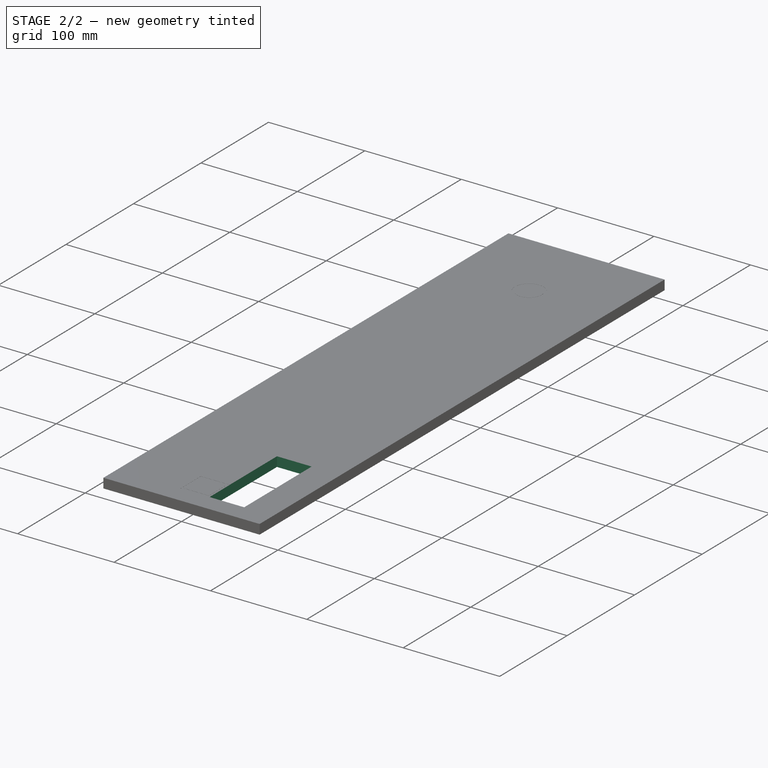
[diagram: stage 2 of 2 — iso view after this stage's code; geometry added in this stage tinted green]
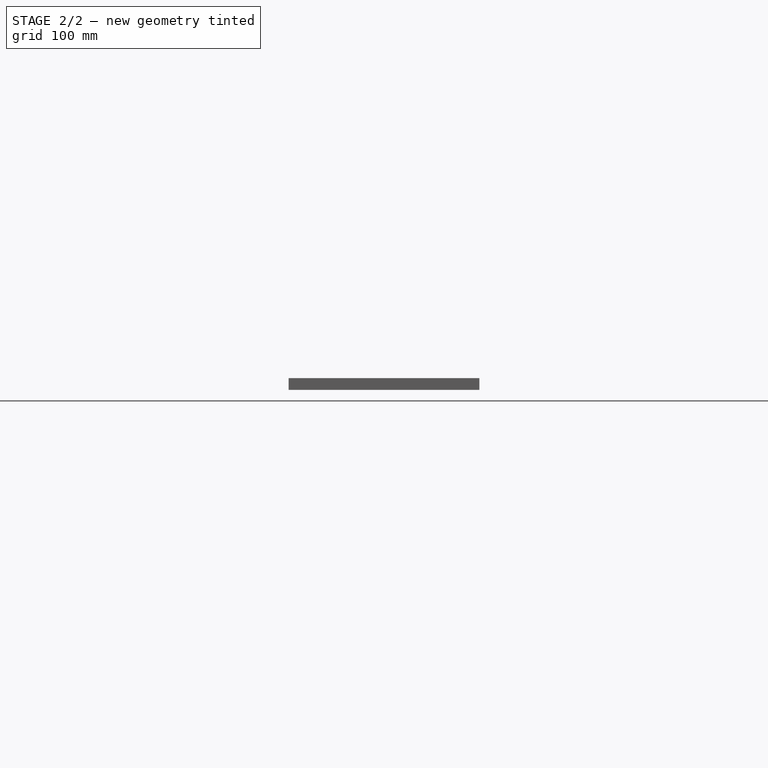
[diagram: stage 2 of 2 — front view after this stage's code; geometry added in this stage tinted green]
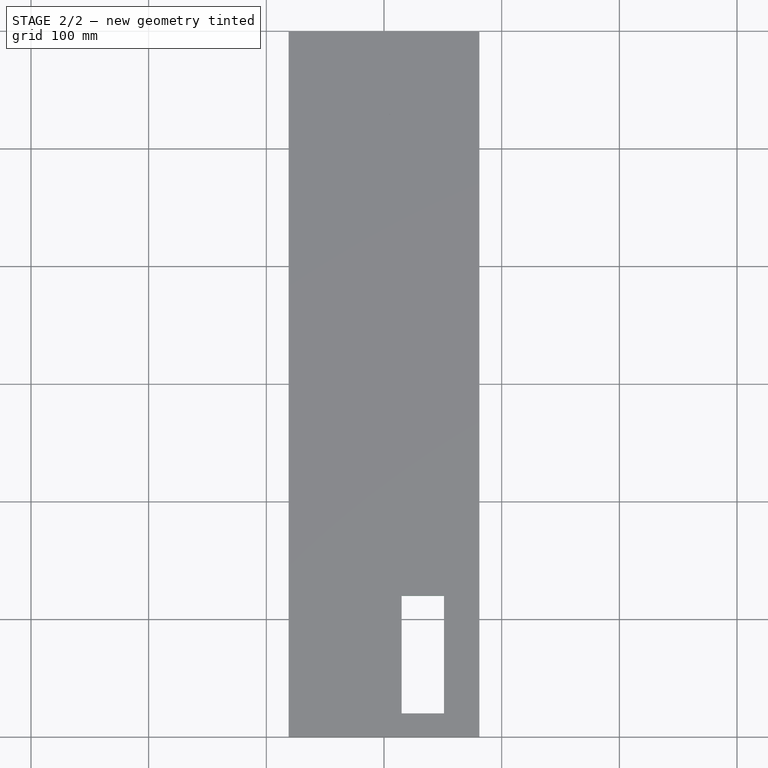
[diagram: stage 2 of 2 — top view after this stage's code; geometry added in this stage tinted green]
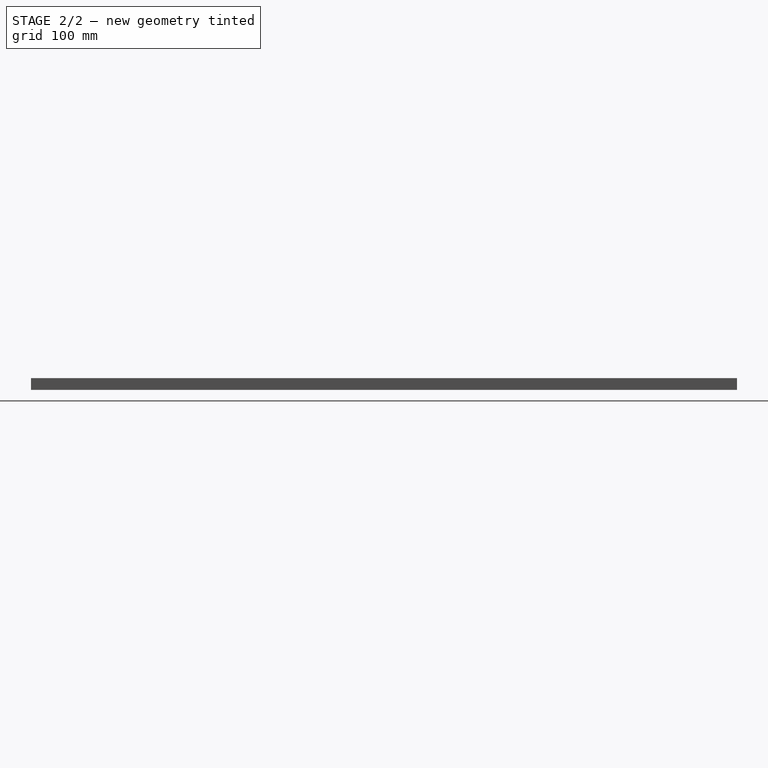
[diagram: stage 2 of 2 — right view after this stage's code; geometry added in this stage tinted green]
FEATURE [PartDesign::Pocket] Pocket002
  BaseFeature = -> Pocket
  Direction = (0,0,-1)
  Length = 5
  Length2 = 5
  Profile = -> Sketch004
  ReferenceAxis = -> Sketch004 [N_Axis]
  Type = 1
FEATURE [Sketcher::SketchObject] Sketch007
  ExternalGeometry = -> [Pad]
  FullyConstrained = true
  MapMode = 5
  Placement = pos=(0,0,10) rot=(0,0,1;0rad)
  Support = -> [Pad]
  sketch-geometry (4):
    g0: LineSegment StartX=-81 StartY=600 StartZ=0 EndX=81 EndY=600 EndZ=0
    g1: LineSegment StartX=81 StartY=600 StartZ=0 EndX=81 EndY=0 EndZ=0
    g2: LineSegment StartX=81 StartY=0 StartZ=0 EndX=-81 EndY=0 EndZ=0
    g3: LineSegment StartX=-81 StartY=0 StartZ=0 EndX=-81 EndY=600 EndZ=0
  constraints (10):
    c: Coincident(g0,g1)
    c: Coincident(g1,g2)
    c: Coincident(g2,g3)
    c: Coincident(g3,g0)
    c: Horizontal(g0)
    c: Horizontal(g2)
    c: Vertical(g1)
    c: Vertical(g3)
    c: Coincident(g0,g-4)
    c: Coincident(g1,g-3)
FEATURE [PartDesign::Body] Body
  Group = -> [Sketch,Pad,Sketch001,Pocket,Sketch002,Sketch003,Sketch005,Sketch004,Sketch006,Pocket002,Sketch007]
  Origin = -> Origin
  Tip = -> Pocket002
FEATURE [Part::Mirroring] Part__Mirroring002  label="Sketch006 (Mirror #3)"
  Base = (-0.9,0,0)
  Normal = (1,0,0)
  Source = -> Sketch006
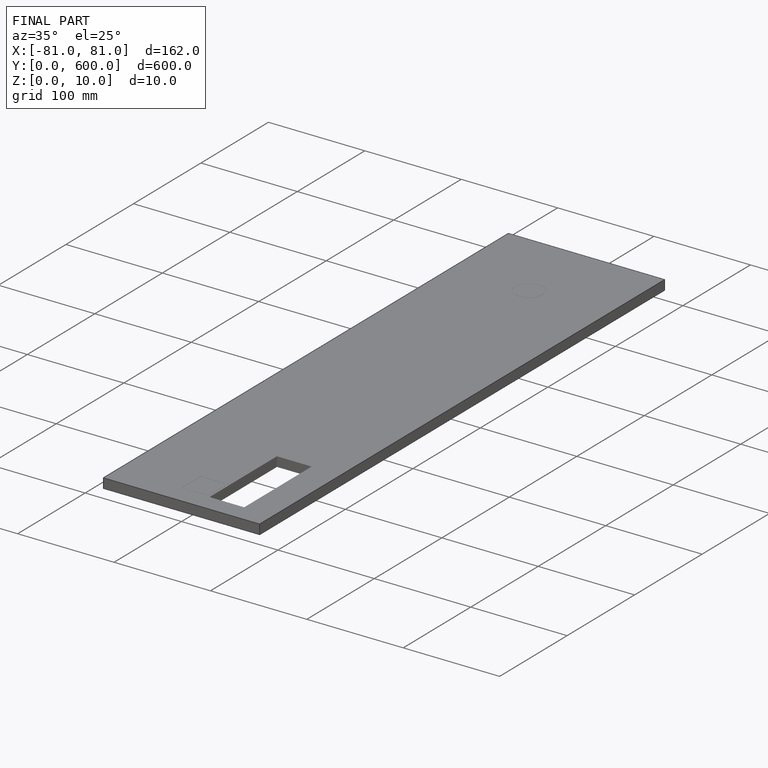
[diagram: finished part — iso view with bounding-box wireframe]
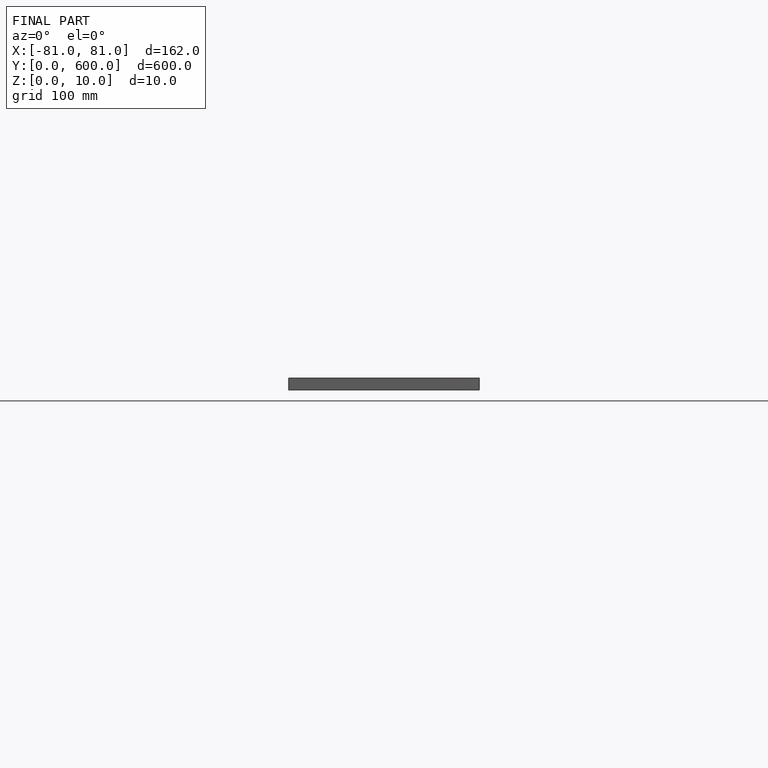
[diagram: finished part — front view with bounding-box wireframe]
